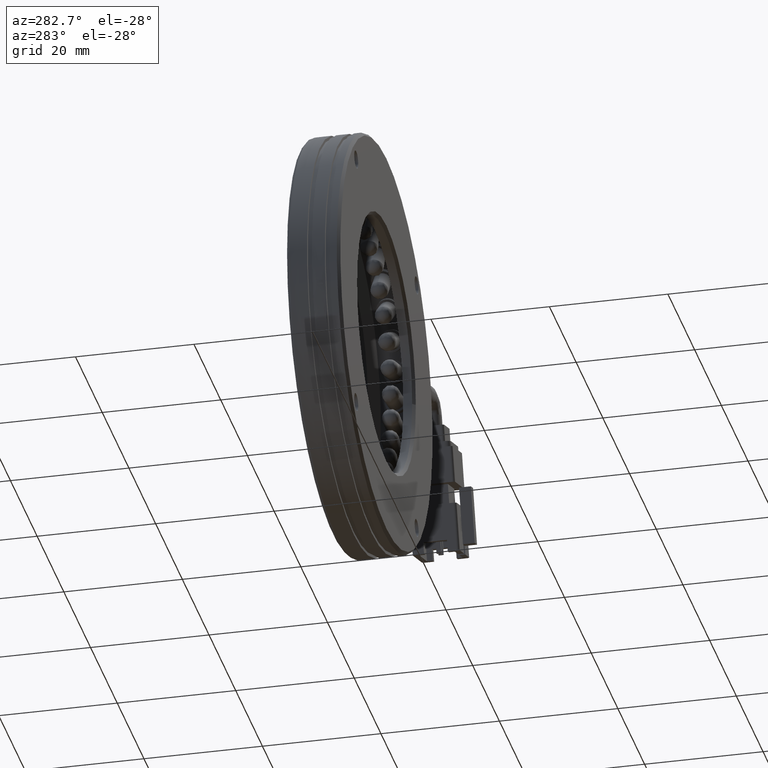
[diagram: clean part render]
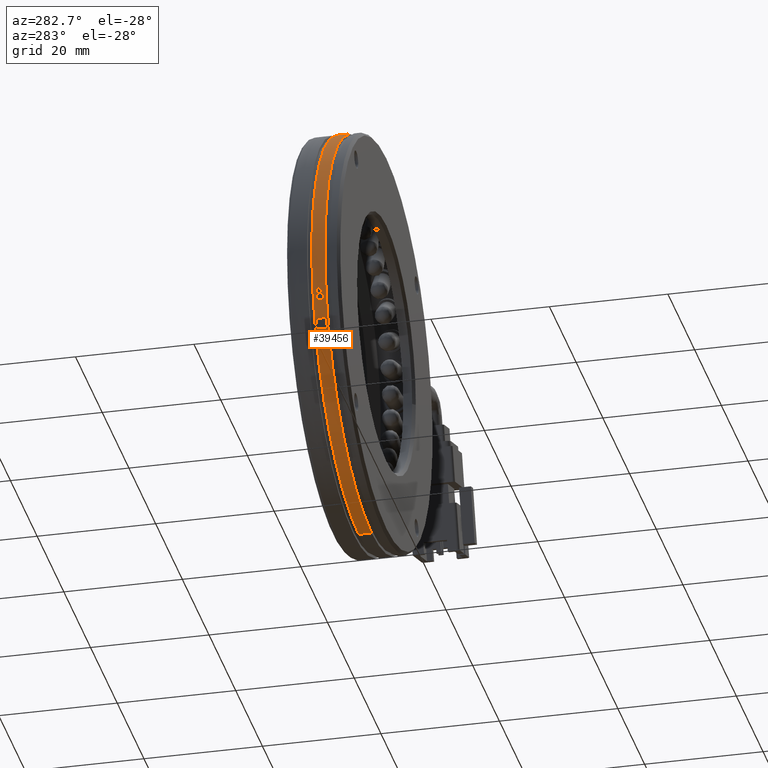
[diagram: same view with one face highlighted and labeled with its STEP entity id]
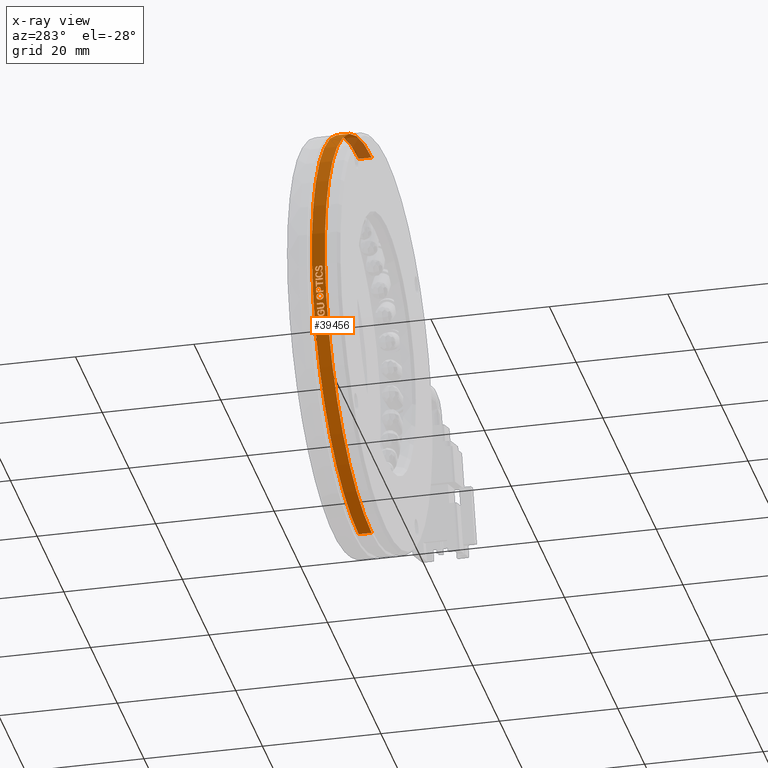
[diagram: x-ray of the same camera — body ghosted, the highlighted face saturated]
A machine part, auxiliary view. The second image highlights one B-rep face of the part: STEP entity #39456.
The next image is the same camera in x-ray: the body ghosted, the highlighted face saturated — about 5% of this face is hidden behind the body in this view.
In plain terms, the highlighted cylindrical surface (partial cylindrical patch) has radius 35 mm, axis along (-0, -1, -0).
Its self-contained STEP definition (entity closure, byte-faithful):
#73 = CARTESIAN_POINT ( 'NONE',  ( -40.53547666222550600, 8.242443319215679400, -3.483992693322067100 ) ) ;
#157 = CARTESIAN_POINT ( 'NONE',  ( -38.64148229074338300, 8.459084325560395400, -11.85204000154898400 ) ) ;
#304 = DIRECTION ( 'NONE',  ( 0.0000000000000000000, -1.000000000000000000, -0.0000000000000000000 ) ) ;
#366 = CARTESIAN_POINT ( 'NONE',  ( -40.29920628825089300, 8.422675619500253700, -5.342081949570753900 ) ) ;
#453 = CARTESIAN_POINT ( 'NONE',  ( -39.95628834277789600, 8.422675619500243000, -7.221028418642943900 ) ) ;
#459 = CARTESIAN_POINT ( 'NONE',  ( -40.56133783458563600, 7.797041341671535600, -3.215118167857672600 ) ) ;
#470 = VERTEX_POINT ( 'NONE', #18406 ) ;
#476 = EDGE_CURVE ( 'NONE', #10409, #35945, #10071, .T. ) ;
#504 = CARTESIAN_POINT ( 'NONE',  ( -39.55218318395322500, 7.736573134054329300, -8.925174409055291100 ) ) ;
#570 = CARTESIAN_POINT ( 'NONE',  ( -39.31469554837986600, 7.389938712935268100, -9.781523189364358800 ) ) ;
#589 = LINE ( 'NONE', #20545, #39957 ) ;
#652 = CARTESIAN_POINT ( 'NONE',  ( -39.79689687238320100, 8.191136736683120000, -7.939624450835792900 ) ) ;
#656 = CARTESIAN_POINT ( 'NONE',  ( -38.86361447577488100, 7.434487917899358100, -11.21574589426866600 ) ) ;
#692 = VERTEX_POINT ( 'NONE', #38119 ) ;
#730 = EDGE_CURVE ( 'NONE', #35945, #5507, #3301, .T. ) ;
#860 = DIRECTION ( 'NONE',  ( 1.493922758805898600E-015, 1.000000000000000000, -5.916712463693376000E-015 ) ) ;
#1065 = CARTESIAN_POINT ( 'NONE',  ( -38.91879959256319700, 8.271977945081571800, -11.05118161482769800 ) ) ;
#1107 = EDGE_CURVE ( 'NONE', #13392, #23356, #589, .T. ) ;
#1163 = EDGE_CURVE ( 'NONE', #10527, #2238, #27072, .T. ) ;
#1197 = CARTESIAN_POINT ( 'NONE',  ( -40.34770708792779500, 8.310776871404204500, -5.018214506731954600 ) ) ;
#1210 = CARTESIAN_POINT ( 'NONE',  ( -40.55049553052099000, 8.379288013979961000, -3.330532701057792100 ) ) ;
#1246 = LINE ( 'NONE', #28783, #25099 ) ;
#1320 = DIRECTION ( 'NONE',  ( -0.0000000000000000000, -1.000000000000000000, -0.0000000000000000000 ) ) ;
#1408 = CARTESIAN_POINT ( 'NONE',  ( -39.02928525543708100, 7.275475782910511700, -10.71354901682399700 ) ) ;
#1444 = EDGE_LOOP ( 'NONE', ( #33549, #36592, #16126, #1475, #12572, #39372, #40021, #35699 ) ) ;
#1448 = CARTESIAN_POINT ( 'NONE',  ( -40.51093759562477500, 7.997929689362726100, -3.721006679087541300 ) ) ;
#1475 = ORIENTED_EDGE ( 'NONE', *, *, #23398, .T. ) ;
#1519 = B_SPLINE_CURVE_WITH_KNOTS ( 'NONE', 3,
 ( #23225, #26402, #10849, #32615, #13970, #35755, #17084, #38851 ),
 .UNSPECIFIED., .F., .F.,
 ( 4, 2, 2, 4 ),
 ( 0.0000000000000000000, 0.0001654224964580908900, 0.0003308449929161817900, 0.0006616899858323659600 ),
 .UNSPECIFIED. ) ;
#1527 = CARTESIAN_POINT ( 'NONE',  ( -40.54775614871339000, 7.540815154383960100, -3.358783389162881300 ) ) ;
#1574 = CARTESIAN_POINT ( 'NONE',  ( -40.38829758862613100, 7.204500430868728600, -4.729970650276749600 ) ) ;
#1606 = CARTESIAN_POINT ( 'NONE',  ( -38.09502467116702500, 8.740899625888616200, -13.27277939368848100 ) ) ;
#1620 = CARTESIAN_POINT ( 'NONE',  ( -40.51378829440806600, 8.438027493296173600, -3.695589123808198400 ) ) ;
#1624 = CARTESIAN_POINT ( 'NONE',  ( -38.82248348599117100, 8.365263761825456600, -11.33674629702095300 ) ) ;
#1669 = LINE ( 'NONE', #39997, #18166 ) ;
#1691 = AXIS2_PLACEMENT_3D ( 'NONE', #2829, #24597, #5933 ) ;
#1712 = CARTESIAN_POINT ( 'NONE',  ( -38.73897972220602500, 7.745321287336094200, -11.57755355022192500 ) ) ;
#1818 = CARTESIAN_POINT ( 'NONE',  ( -38.95554166414014900, 7.200350038104892800, -10.94061511975390600 ) ) ;
#1903 = CARTESIAN_POINT ( 'NONE',  ( -40.52745269589782900, 7.200350038104947900, -3.563101997593711700 ) ) ;
#1912 = EDGE_CURVE ( 'NONE', #34931, #16274, #9187, .T. ) ;
#1937 = ORIENTED_EDGE ( 'NONE', *, *, #34695, .T. ) ;
#1973 = CARTESIAN_POINT ( 'NONE',  ( -5.709292144904565300, 6.760202915404272900, 0.0000000000000000000 ) ) ;
#2053 = CARTESIAN_POINT ( 'NONE',  ( -38.96181454054757200, 7.371642282008244800, -10.92116980101372500 ) ) ;
#2133 = DIRECTION ( 'NONE',  ( 1.754067551975839800E-015, 1.000000000000000000, -6.947021380965523500E-015 ) ) ;
#2165 = CARTESIAN_POINT ( 'NONE',  ( -39.07672688670966500, 7.468257014849023700, -10.56476685740761000 ) ) ;
#2192 = CARTESIAN_POINT ( 'NONE',  ( -40.38554920654129900, 8.251372978122699200, -4.749632317554620000 ) ) ;
#2218 = CARTESIAN_POINT ( 'NONE',  ( -40.52084883555796300, 7.734371977649755300, -3.627458954294418900 ) ) ;
#2238 = VERTEX_POINT ( 'NONE', #5623 ) ;
#2490 = EDGE_CURVE ( 'NONE', #33419, #27143, #11938, .T. ) ;
#2505 = CARTESIAN_POINT ( 'NONE',  ( -40.41747967230236300, 7.357941789606278400, -4.510990520821573900 ) ) ;
#2538 = CARTESIAN_POINT ( 'NONE',  ( -39.00510746707349300, -49.82318178258231000, -10.78835863475163300 ) ) ;
#2557 = CARTESIAN_POINT ( 'NONE',  ( -39.81530310243452700, 7.660729062786580300, -7.860056566970934400 ) ) ;
#2568 = CARTESIAN_POINT ( 'NONE',  ( -5.709292144904565300, 8.422675619500260800, 0.0000000000000000000 ) ) ;
#2600 = VERTEX_POINT ( 'NONE', #26842 ) ;
#2649 = DIRECTION ( 'NONE',  ( -0.0000000000000000000, -1.000000000000000000, -0.0000000000000000000 ) ) ;
#2688 = CARTESIAN_POINT ( 'NONE',  ( -40.54475765538457200, 7.431237524811434600, -3.389763908610748300 ) ) ;
#2720 = CARTESIAN_POINT ( 'NONE',  ( -40.41255655515831800, 8.432226185035306200, -4.548252076466383200 ) ) ;
#2766 = B_SPLINE_CURVE_WITH_KNOTS ( 'NONE', 3,
 ( #24241, #2505, #9290, #31062, #12412, #34205 ),
 .UNSPECIFIED., .F., .F.,
 ( 4, 2, 4 ),
 ( 0.0000000000000000000, 0.0002535272893336179100, 0.0005070545786672358200 ),
 .UNSPECIFIED. ) ;
#2784 = AXIS2_PLACEMENT_3D ( 'NONE', #15032, #36819, #18165 ) ;
#2829 = CARTESIAN_POINT ( 'NONE',  ( -5.709292144904565300, 8.087791898569992800, 0.0000000000000000000 ) ) ;
#2838 = LINE ( 'NONE', #20787, #26701 ) ;
#2908 = CARTESIAN_POINT ( 'NONE',  ( -38.03202334669729400, 7.001512059884381000, -13.42542577771813200 ) ) ;
#2918 = CARTESIAN_POINT ( 'NONE',  ( -40.03813142602208300, 7.977316565985819200, -6.821348518083851800 ) ) ;
#2938 = EDGE_CURVE ( 'NONE', #36874, #9990, #31979, .T. ) ;
#2966 = CARTESIAN_POINT ( 'NONE',  ( -40.56877179554821600, 8.065466317174681900, -3.133157909579497700 ) ) ;
#3043 = ORIENTED_EDGE ( 'NONE', *, *, #26605, .T. ) ;
#3129 = CARTESIAN_POINT ( 'NONE',  ( -39.19875312196083400, 7.669187247407189800, -10.17133243317831800 ) ) ;
#3194 = CARTESIAN_POINT ( 'NONE',  ( -40.52476537185084700, 8.266396549732800000, -3.589265103581328600 ) ) ;
#3301 = B_SPLINE_CURVE_WITH_KNOTS ( 'NONE', 3,
 ( #5939, #7421, #4041, #36625, #34635, #39090, #7647, #5803 ),
 .UNSPECIFIED., .F., .F.,
 ( 4, 2, 2, 4 ),
 ( 0.0000000000000000000, 7.768946172602923100E-005, 0.0001553789234520584600, 0.0003107578469041152400 ),
 .UNSPECIFIED. ) ;
#3488 = VERTEX_POINT ( 'NONE', #39619 ) ;
#3504 = CARTESIAN_POINT ( 'NONE',  ( -39.68912917594610000, 7.200350038104912400, -8.388723105685269100 ) ) ;
#3507 = CARTESIAN_POINT ( 'NONE',  ( -39.72578698116698300, 8.420034948256935400, -8.239131724998019400 ) ) ;
#3514 = VERTEX_POINT ( 'NONE', #28610 ) ;
#3527 = EDGE_CURVE ( 'NONE', #692, #39454, #38435, .T. ) ;
#3534 = B_SPLINE_CURVE_WITH_KNOTS ( 'NONE', 3,
 ( #20839, #36359, #30230, #11589, #33379, #14719, #36483, #17822 ),
 .UNSPECIFIED., .F., .F.,
 ( 4, 2, 2, 4 ),
 ( 0.0000000000000000000, 0.0001754701520296395500, 0.0002632052280444594300, 0.0003509403040592792700 ),
 .UNSPECIFIED. ) ;
#3549 = EDGE_CURVE ( 'NONE', #16097, #37463, #5348, .T. ) ;
#3583 = CARTESIAN_POINT ( 'NONE',  ( -40.51794274114319400, 7.195225774058302500, -3.656032015230994400 ) ) ;
#3598 = CARTESIAN_POINT ( 'NONE',  ( -40.35859765001420400, 7.755539012862845600, -4.942229227585373900 ) ) ;
#3659 = EDGE_CURVE ( 'NONE', #25961, #36083, #6673, .T. ) ;
#3701 = CARTESIAN_POINT ( 'NONE',  ( -39.33623799906057200, 7.477897251754965800, -9.707163120419680900 ) ) ;
#3727 = CARTESIAN_POINT ( 'NONE',  ( -40.37920079895310700, 7.424216999721125800, -4.795800411846191700 ) ) ;
#3733 = EDGE_CURVE ( 'NONE', #10079, #22161, #31112, .T. ) ;
#3755 = EDGE_CURVE ( 'NONE', #17462, #470, #32492, .T. ) ;
#3760 = DIRECTION ( 'NONE',  ( -3.470918447232477800E-015, -1.000000000000000000, 1.374664541131868600E-014 ) ) ;
#3766 = CARTESIAN_POINT ( 'NONE',  ( -39.81471281410183800, 7.970489118088113200, -7.862619172650771500 ) ) ;
#3769 = CARTESIAN_POINT ( 'NONE',  ( -38.90883928611893300, 7.366881929807158600, -11.08119248646681900 ) ) ;
#3780 = CARTESIAN_POINT ( 'NONE',  ( -40.51514803059363600, 8.259676748573346200, -3.681524417298796000 ) ) ;
#3846 = VERTEX_POINT ( 'NONE', #31989 ) ;
#3887 = ORIENTED_EDGE ( 'NONE', *, *, #17932, .T. ) ;
#4033 = EDGE_CURVE ( 'NONE', #33059, #32058, #33050, .T. ) ;
#4041 = CARTESIAN_POINT ( 'NONE',  ( -40.54721289358637600, 7.593158427939165700, -3.364436159476679800 ) ) ;
#4047 = EDGE_CURVE ( 'NONE', #4275, #36874, #26568, .T. ) ;
#4052 = CARTESIAN_POINT ( 'NONE',  ( -39.55465258360452200, 7.969963101081008400, -8.915829229625401800 ) ) ;
#4059 = EDGE_CURVE ( 'NONE', #470, #14309, #2838, .T. ) ;
#4121 = CARTESIAN_POINT ( 'NONE',  ( -40.56685186871252600, 7.343572252354553200, -3.154530986789975300 ) ) ;
#4275 = VERTEX_POINT ( 'NONE', #9633 ) ;
#4277 = FACE_BOUND ( 'NONE', #31274, .T. ) ;
#4312 = CARTESIAN_POINT ( 'NONE',  ( -40.37654649462209700, 8.419737279391098300, -4.815234610611336800 ) ) ;
#4326 = CARTESIAN_POINT ( 'NONE',  ( -40.56190549431917700, 8.269175613935082900, -3.208735270689643900 ) ) ;
#4496 = ORIENTED_EDGE ( 'NONE', *, *, #26000, .T. ) ;
#4590 = CARTESIAN_POINT ( 'NONE',  ( -38.73897997783097200, 7.903406844032245400, -11.57755282113232900 ) ) ;
#4620 = VERTEX_POINT ( 'NONE', #33566 ) ;
#4631 = B_SPLINE_CURVE_WITH_KNOTS ( 'NONE', 3,
 ( #10290, #28941, #16521, #38314, #19655, #1065 ),
 .UNSPECIFIED., .F., .F.,
 ( 4, 2, 4 ),
 ( 0.0000000000000000000, 0.0001649458155764962300, 0.0003298916311529924600 ),
 .UNSPECIFIED. ) ;
#4636 = EDGE_CURVE ( 'NONE', #37463, #26574, #5630, .T. ) ;
#4654 = EDGE_CURVE ( 'NONE', #30132, #6888, #13895, .T. ) ;
#4731 = CARTESIAN_POINT ( 'NONE',  ( -38.89403620348128500, 8.435338422186063700, -11.12559718257487900 ) ) ;
#4793 = CARTESIAN_POINT ( 'NONE',  ( -40.45697096470811300, 7.401280270663060700, -4.195094353620150200 ) ) ;
#4822 = CARTESIAN_POINT ( 'NONE',  ( -40.45059680485722700, 7.331127349915618700, -4.247891082507437400 ) ) ;
#4944 = EDGE_CURVE ( 'NONE', #12218, #37077, #29627, .T. ) ;
#5063 = CARTESIAN_POINT ( 'NONE',  ( -39.19956218354241900, 7.593185600686521000, -10.16867133117875400 ) ) ;
#5092 = DIRECTION ( 'NONE',  ( 0.0000000000000000000, 0.0000000000000000000, -1.000000000000000000 ) ) ;
#5116 = CARTESIAN_POINT ( 'NONE',  ( -40.52250237802779500, 7.944830209371730200, -3.611475847821242500 ) ) ;
#5137 = CARTESIAN_POINT ( 'NONE',  ( -39.40376367187176500, 7.453320110577359400, -9.470101608405192600 ) ) ;
#5226 = FACE_BOUND ( 'NONE', #21199, .T. ) ;
#5300 = CARTESIAN_POINT ( 'NONE',  ( -40.36928885171335000, 8.153539806427026800, -4.866735766951553200 ) ) ;
#5348 = LINE ( 'NONE', #29162, #20908 ) ;
#5368 = VECTOR ( 'NONE', #7444, 1000.000000000000000 ) ;
#5472 = LINE ( 'NONE', #29111, #13717 ) ;
#5507 = VERTEX_POINT ( 'NONE', #21239 ) ;
#5557 = CARTESIAN_POINT ( 'NONE',  ( -40.03705161495266700, 8.140099605349982800, -6.826798934873116000 ) ) ;
#5623 = CARTESIAN_POINT ( 'NONE',  ( -38.92374827998977300, 7.200350038104891900, -11.03629936393990000 ) ) ;
#5630 = CIRCLE ( 'NONE', #38976, 34.99999999999999300 ) ;
#5653 = CARTESIAN_POINT ( 'NONE',  ( -38.86006584279557800, 8.197629872400705500, -11.22621805095343500 ) ) ;
#5670 = CARTESIAN_POINT ( 'NONE',  ( -39.79773789773552300, 7.441742396686799500, -7.936019734895056700 ) ) ;
#5681 = DIRECTION ( 'NONE',  ( 0.0000000000000000000, 0.0000000000000000000, -1.000000000000000000 ) ) ;
#5772 = ORIENTED_EDGE ( 'NONE', *, *, #30649, .T. ) ;
#5803 = CARTESIAN_POINT ( 'NONE',  ( -40.52638276884088200, 7.725001200895628800, -3.573541728398598000 ) ) ;
#5823 = CARTESIAN_POINT ( 'NONE',  ( -40.43371579231780500, 8.376161693293269600, -4.383668734466495700 ) ) ;
#5866 = EDGE_LOOP ( 'NONE', ( #29716, #24543, #12708, #9671, #14039, #29892, #18057, #34245, #9169, #35156, #19631, #17599, #12170, #32187 ) ) ;
#5933 = DIRECTION ( 'NONE',  ( 0.0000000000000000000, 0.0000000000000000000, 1.000000000000000000 ) ) ;
#5939 = CARTESIAN_POINT ( 'NONE',  ( -40.54775614871339000, 7.540815154383960100, -3.358783389162881300 ) ) ;
#5973 = AXIS2_PLACEMENT_3D ( 'NONE', #13459, #35264, #16589 ) ;
#6005 = CARTESIAN_POINT ( 'NONE',  ( -37.99907053573987500, 7.103584130538312300, -13.50445773701650700 ) ) ;
#6032 = ORIENTED_EDGE ( 'NONE', *, *, #19426, .T. ) ;
#6086 = LINE ( 'NONE', #29408, #38211 ) ;
#6158 = LINE ( 'NONE', #2538, #22689 ) ;
#6408 = EDGE_CURVE ( 'NONE', #14309, #10409, #36701, .T. ) ;
#6424 = CARTESIAN_POINT ( 'NONE',  ( -40.39923010655290600, 7.365698733646627100, -4.648769777147856900 ) ) ;
#6441 = B_SPLINE_CURVE_WITH_KNOTS ( 'NONE', 3,
 ( #6982, #12932, #25769, #7117, #28875, #10229, #32009, #13334, #35133, #16460 ),
 .UNSPECIFIED., .F., .F.,
 ( 4, 2, 2, 2, 4 ),
 ( 0.0000000000000000000, 0.0002096298023309850400, 0.0004192596046619700800, 0.0006288894069929550600, 0.0008385192093239401500 ),
 .UNSPECIFIED. ) ;
#6485 = CARTESIAN_POINT ( 'NONE',  ( -37.98725723676815800, 7.277541098519406200, -13.53266306121728500 ) ) ;
#6491 = AXIS2_PLACEMENT_3D ( 'NONE', #19428, #860, #22585 ) ;
#6494 = LINE ( 'NONE', #35507, #23046 ) ;
#6518 = AXIS2_PLACEMENT_3D ( 'NONE', #15258, #37033, #18372 ) ;
#6547 = CARTESIAN_POINT ( 'NONE',  ( -5.709292144904565300, 8.043140735779310500, 0.0000000000000000000 ) ) ;
#6560 = EDGE_CURVE ( 'NONE', #12778, #10484, #22406, .T. ) ;
#6603 = CARTESIAN_POINT ( 'NONE',  ( -39.67052613917385900, 7.205244149363530900, -8.464077620292503200 ) ) ;
#6673 = B_SPLINE_CURVE_WITH_KNOTS ( 'NONE', 3,
 ( #453, #21457, #22744, #17885, #39673, #33442, #11658, #5557, #21034, #11084 ),
 .UNSPECIFIED., .F., .F.,
 ( 4, 2, 2, 2, 4 ),
 ( 0.0000000000000000000, 0.0001612189044589055000, 0.0003224378089178110100, 0.0004836567133767164800, 0.0006448756178356220100 ),
 .UNSPECIFIED. ) ;
#6799 = CARTESIAN_POINT ( 'NONE',  ( -39.34351962650100600, 7.591435000567733100, -9.681879432709633800 ) ) ;
#6887 = CARTESIAN_POINT ( 'NONE',  ( -39.81836345621975700, 7.814303526476971100, -7.846735262490696500 ) ) ;
#6888 = VERTEX_POINT ( 'NONE', #14942 ) ;
#6893 = CARTESIAN_POINT ( 'NONE',  ( -39.55129533759086500, 7.814303526476964000, -8.928539628976865900 ) ) ;
#6898 = CARTESIAN_POINT ( 'NONE',  ( -40.50818900838824300, 8.198170257738963700, -3.746575503391677700 ) ) ;
#6946 = B_SPLINE_CURVE_WITH_KNOTS ( 'NONE', 3,
 ( #29458, #7698, #35742, #17071, #38835, #20208, #1620, #23352 ),
 .UNSPECIFIED., .F., .F.,
 ( 4, 2, 2, 4 ),
 ( 0.0000000000000000000, 0.0001499525500138700000, 0.0002999051000277399900, 0.0005998102000554818300 ),
 .UNSPECIFIED. ) ;
#6982 = CARTESIAN_POINT ( 'NONE',  ( -39.27059936408246400, 7.200350038104902600, -9.931699640039335400 ) ) ;
#7096 = CARTESIAN_POINT ( 'NONE',  ( -40.52745269589782900, 7.937094224151449500, -3.563101997593718400 ) ) ;
#7098 = AXIS2_PLACEMENT_3D ( 'NONE', #7923, #29661, #23574 ) ;
#7117 = CARTESIAN_POINT ( 'NONE',  ( -39.19116559749935600, 7.241640923057700800, -10.19650719777151300 ) ) ;
#7156 = CARTESIAN_POINT ( 'NONE',  ( -39.57368600056371800, 8.193242521652154100, -8.843374889167666500 ) ) ;
#7176 = CARTESIAN_POINT ( 'NONE',  ( -40.26084559011923100, 7.222675619500254400, -5.584814636357588600 ) ) ;
#7216 = CARTESIAN_POINT ( 'NONE',  ( -40.55444964358935100, 7.241605815432302900, -3.288966588245640500 ) ) ;
#7247 = DIRECTION ( 'NONE',  ( -0.0000000000000000000, -1.000000000000000000, -0.0000000000000000000 ) ) ;
#7421 = CARTESIAN_POINT ( 'NONE',  ( -40.54775614871338300, 7.567005895077189200, -3.358783389162880000 ) ) ;
#7435 = CARTESIAN_POINT ( 'NONE',  ( -40.39723486211963200, 8.439419805546799900, -4.663328215685306900 ) ) ;
#7444 = DIRECTION ( 'NONE',  ( -0.0000000000000000000, -1.000000000000000000, -0.0000000000000000000 ) ) ;
#7453 = CARTESIAN_POINT ( 'NONE',  ( -40.56792547127482600, 8.119658643845564700, -3.142574103923013500 ) ) ;
#7475 = CARTESIAN_POINT ( 'NONE',  ( -40.48101679372501800, 7.561069157719599900, -3.991237260824512100 ) ) ;
#7480 = CARTESIAN_POINT ( 'NONE',  ( -40.47489217857850000, 7.635698875314251800, -4.043890985005838900 ) ) ;
#7647 = CARTESIAN_POINT ( 'NONE',  ( -40.53160634239914400, 7.715725028124659900, -3.522648343689113400 ) ) ;
#7698 = CARTESIAN_POINT ( 'NONE',  ( -40.47820313024874400, 8.160864566583649400, -4.015325018201898500 ) ) ;
#7736 = EDGE_CURVE ( 'NONE', #2600, #20907, #37843, .T. ) ;
#7810 = CARTESIAN_POINT ( 'NONE',  ( -38.92374827998977300, 7.200350038104891900, -11.03629936393990000 ) ) ;
#7833 = DIRECTION ( 'NONE',  ( -2.297594453175613100E-015, -1.000000000000000000, 9.099671089074809300E-015 ) ) ;
#7868 = CARTESIAN_POINT ( 'NONE',  ( -39.41190144243923800, 7.741745386942083600, -9.441087148084673000 ) ) ;
#7923 = CARTESIAN_POINT ( 'NONE',  ( -5.709292144904565300, -49.82318178258231000, 0.0000000000000000000 ) ) ;
#7957 = CARTESIAN_POINT ( 'NONE',  ( -40.42150679548596100, 7.212168896957985400, -4.479812809557270900 ) ) ;
#7986 = EDGE_CURVE ( 'NONE', #39454, #29812, #33782, .T. ) ;
#8086 = CARTESIAN_POINT ( 'NONE',  ( -40.29920628825089300, -49.82318178258228900, -5.342081949570753900 ) ) ;
#8095 = CARTESIAN_POINT ( 'NONE',  ( -38.64148229074350400, 8.414617254833320500, -11.85204000154861200 ) ) ;
#8138 = CARTESIAN_POINT ( 'NONE',  ( -38.63145249990672900, 7.105419689710889700, -11.87987861108269300 ) ) ;
#8158 = FACE_BOUND ( 'NONE', #1444, .T. ) ;
#8181 = CARTESIAN_POINT ( 'NONE',  ( -39.20813479704043700, 7.482108126761699100, -10.14041591830368600 ) ) ;
#8255 = CARTESIAN_POINT ( 'NONE',  ( -39.36957160098684500, 7.275160774851551400, -9.591031925942360200 ) ) ;
#8288 = CARTESIAN_POINT ( 'NONE',  ( -38.92538948739746000, 7.362210503221152900, -11.03135881630345900 ) ) ;
#8422 = CARTESIAN_POINT ( 'NONE',  ( -40.36127688002331800, 8.011527160321612900, -4.923415586954157600 ) ) ;
#8538 = B_SPLINE_CURVE_WITH_KNOTS ( 'NONE', 3,
 ( #32190, #13519, #16648, #38431, #19776, #1197, #22919, #4312, #26099, #7435 ),
 .UNSPECIFIED., .F., .F.,
 ( 4, 2, 2, 2, 4 ),
 ( 0.0000000000000000000, 0.0002269707158079891900, 0.0004539414316159783900, 0.0006809121474239675500, 0.0009078828632319567700 ),
 .UNSPECIFIED. ) ;
#8550 = DIRECTION ( 'NONE',  ( -2.548855391038940300E-015, -1.000000000000000000, 1.009479531081403400E-014 ) ) ;
#8565 = CARTESIAN_POINT ( 'NONE',  ( -40.17456373751140600, 7.222675619500247300, -6.094674236400825500 ) ) ;
#8574 = CARTESIAN_POINT ( 'NONE',  ( -40.50415660005546700, 7.779498754954890800, -3.784193629749848400 ) ) ;
#8583 = CARTESIAN_POINT ( 'NONE',  ( -40.06103514893978700, 8.255233759035112600, -6.705054256657208000 ) ) ;
#8612 = CYLINDRICAL_SURFACE ( 'NONE', #7098, 34.99999999999999300 ) ;
#8622 = DIRECTION ( 'NONE',  ( 0.0000000000000000000, 1.000000000000000000, 0.0000000000000000000 ) ) ;
#8740 = VERTEX_POINT ( 'NONE', #28784 ) ;
#8766 = CARTESIAN_POINT ( 'NONE',  ( -38.82586513494869300, 8.023305410775336100, -11.32673464351591800 ) ) ;
#8782 = CARTESIAN_POINT ( 'NONE',  ( -39.75958430194381800, 7.277443506221590800, -8.098318947807188200 ) ) ;
#8884 = ORIENTED_EDGE ( 'NONE', *, *, #28873, .T. ) ;
#8951 = CARTESIAN_POINT ( 'NONE',  ( -40.44973167136441800, 8.258070460879219300, -4.254718912902770700 ) ) ;
#8971 = CIRCLE ( 'NONE', #37268, 34.99999999999999300 ) ;
#8978 = CARTESIAN_POINT ( 'NONE',  ( -39.27207348800719400, 7.362210503221170700, -9.926716905154590300 ) ) ;
#8979 = CARTESIAN_POINT ( 'NONE',  ( -40.56513329941063300, 7.760054152277430000, -3.173513029057545500 ) ) ;
#9028 = EDGE_CURVE ( 'NONE', #30320, #25961, #25210, .T. ) ;
#9035 = ORIENTED_EDGE ( 'NONE', *, *, #34539, .T. ) ;
#9099 = AXIS2_PLACEMENT_3D ( 'NONE', #20729, #2133, #23875 ) ;
#9119 = CARTESIAN_POINT ( 'NONE',  ( -39.85305510295734900, 7.222675619500240200, -7.694377886762671500 ) ) ;
#9136 = CARTESIAN_POINT ( 'NONE',  ( -37.98725723676798800, 7.232952337373855100, -13.53266306121765800 ) ) ;
#9165 = ORIENTED_EDGE ( 'NONE', *, *, #23213, .T. ) ;
#9169 = ORIENTED_EDGE ( 'NONE', *, *, #30181, .T. ) ;
#9187 = CIRCLE ( 'NONE', #33896, 34.99999999999999300 ) ;
#9206 = AXIS2_PLACEMENT_3D ( 'NONE', #6547, #28309, #9680 ) ;
#9273 = CARTESIAN_POINT ( 'NONE',  ( -40.03162370690012000, 7.818736150746274500, -6.854033237154530900 ) ) ;
#9290 = CARTESIAN_POINT ( 'NONE',  ( -40.42816074560423100, 7.389028225742777100, -4.427721815550484900 ) ) ;
#9458 = CARTESIAN_POINT ( 'NONE',  ( -39.12517057512438600, 7.730582596244414800, -10.41052682320971100 ) ) ;
#9525 = EDGE_CURVE ( 'NONE', #8740, #14310, #4631, .T. ) ;
#9633 = CARTESIAN_POINT ( 'NONE',  ( -40.39932456966155200, 8.266396549732789400, -4.647757563525561700 ) ) ;
#9671 = ORIENTED_EDGE ( 'NONE', *, *, #11297, .T. ) ;
#9680 = DIRECTION ( 'NONE',  ( 0.0000000000000000000, 0.0000000000000000000, 1.000000000000000000 ) ) ;
#9799 = CARTESIAN_POINT ( 'NONE',  ( -39.28312182066953500, 7.360562549649730000, -9.889361878624193000 ) ) ;
#9833 = ORIENTED_EDGE ( 'NONE', *, *, #3755, .T. ) ;
#9844 = VERTEX_POINT ( 'NONE', #3129 ) ;
#9849 = CARTESIAN_POINT ( 'NONE',  ( -40.42986843329651900, 8.043140735779310500, -4.413794535538989400 ) ) ;
#9882 = CARTESIAN_POINT ( 'NONE',  ( -38.82021610022735600, 7.819884921825778400, -11.34313514090487000 ) ) ;
#9932 = EDGE_CURVE ( 'NONE', #15194, #32682, #10873, .T. ) ;
#9936 = DIRECTION ( 'NONE',  ( -0.0000000000000000000, -1.000000000000000000, -0.0000000000000000000 ) ) ;
#9938 = CARTESIAN_POINT ( 'NONE',  ( -39.34359537937439200, 7.669187247407199600, -9.681613808231128700 ) ) ;
#9990 = VERTEX_POINT ( 'NONE', #38715 ) ;
#10022 = CARTESIAN_POINT ( 'NONE',  ( -40.50645486383901800, 8.132707291789376600, -3.762641000869432000 ) ) ;
#10042 = EDGE_CURVE ( 'NONE', #38629, #36228, #17892, .T. ) ;
#10071 = B_SPLINE_CURVE_WITH_KNOTS ( 'NONE', 3,
 ( #27302, #28210, #11908, #29865, #2688, #31949, #32606, #31080 ),
 .UNSPECIFIED., .F., .F.,
 ( 4, 2, 2, 4 ),
 ( 0.0000000000000000000, 0.0001717628989189252200, 0.0002576443483783890300, 0.0003435257978378528700 ),
 .UNSPECIFIED. ) ;
#10079 = VERTEX_POINT ( 'NONE', #36008 ) ;
#10094 = CARTESIAN_POINT ( 'NONE',  ( -40.57036441822205600, 7.666607211403667000, -3.115523629871976000 ) ) ;
#10139 = ORIENTED_EDGE ( 'NONE', *, *, #33015, .T. ) ;
#10192 = CARTESIAN_POINT ( 'NONE',  ( -40.54623750038824400, 8.065466317174685400, -3.374498229225254300 ) ) ;
#10200 = AXIS2_PLACEMENT_3D ( 'NONE', #22353, #3760, #25543 ) ;
#10206 = DIRECTION ( 'NONE',  ( 0.0000000000000000000, 1.000000000000000000, 0.0000000000000000000 ) ) ;
#10229 = CARTESIAN_POINT ( 'NONE',  ( -39.14431553867947100, 7.383153390592332800, -10.34898258146121100 ) ) ;
#10275 = CARTESIAN_POINT ( 'NONE',  ( -39.61509251605758700, 8.363603585705695000, -8.683434711592136400 ) ) ;
#10290 = CARTESIAN_POINT ( 'NONE',  ( -38.99545062048834200, 8.087791898569996400, -10.81811693125576600 ) ) ;
#10342 = CARTESIAN_POINT ( 'NONE',  ( -40.53868788079728300, 7.203952927624682100, -3.451987048637009000 ) ) ;
#10409 = VERTEX_POINT ( 'NONE', #26455 ) ;
#10416 = CARTESIAN_POINT ( 'NONE',  ( -39.34359537937431400, 8.422675619500225300, -9.681613808231441400 ) ) ;
#10484 = VERTEX_POINT ( 'NONE', #29651 ) ;
#10527 = VERTEX_POINT ( 'NONE', #20671 ) ;
#10559 = CARTESIAN_POINT ( 'NONE',  ( -40.50467462264423800, 7.389678675521260200, -3.779833531160769100 ) ) ;
#10647 = VERTEX_POINT ( 'NONE', #8978 ) ;
#10849 = CARTESIAN_POINT ( 'NONE',  ( -38.95364630601825000, 8.434214380726640300, -10.94604072498605500 ) ) ;
#10873 = B_SPLINE_CURVE_WITH_KNOTS ( 'NONE', 3,
 ( #16665, #35334, #13530, #19790, #1210, #22939, #4326, #26118, #7453, #29212 ),
 .UNSPECIFIED., .F., .F.,
 ( 4, 2, 2, 2, 4 ),
 ( 0.0000000000000000000, 0.0001633882542697545700, 0.0003267765085395091400, 0.0004901647628092637400, 0.0006535530170790182900 ),
 .UNSPECIFIED. ) ;
#10906 = AXIS2_PLACEMENT_3D ( 'NONE', #32991, #14328, #36114 ) ;
#10936 = CARTESIAN_POINT ( 'NONE',  ( -39.81836345621975700, 7.814303526476971100, -7.846735262490696500 ) ) ;
#11011 = EDGE_CURVE ( 'NONE', #36228, #20714, #1519, .T. ) ;
#11045 = CIRCLE ( 'NONE', #37361, 34.99999999999999300 ) ;
#11048 = CARTESIAN_POINT ( 'NONE',  ( -40.35779602570709600, 7.277215972932811600, -4.948374904593429800 ) ) ;
#11084 = CARTESIAN_POINT ( 'NONE',  ( -40.03785616239567000, 8.031977945081628400, -6.822733506228666500 ) ) ;
#11088 = AXIS2_PLACEMENT_3D ( 'NONE', #27207, #8550, #30330 ) ;
#11117 = EDGE_CURVE ( 'NONE', #3514, #34194, #16306, .T. ) ;
#11203 = LINE ( 'NONE', #29159, #27775 ) ;
#11241 = ORIENTED_EDGE ( 'NONE', *, *, #19285, .T. ) ;
#11254 = CARTESIAN_POINT ( 'NONE',  ( -38.60268047168327900, 7.002479478845539300, -11.95934721568090500 ) ) ;
#11297 = EDGE_CURVE ( 'NONE', #20714, #8740, #26833, .T. ) ;
#11299 = CARTESIAN_POINT ( 'NONE',  ( -39.22995528470848100, 7.395820149749652300, -10.06808778096503000 ) ) ;
#11324 = ORIENTED_EDGE ( 'NONE', *, *, #3659, .T. ) ;
#11377 = CARTESIAN_POINT ( 'NONE',  ( -39.31197047903702900, 7.200174899128376700, -9.791065868198012700 ) ) ;
#11399 = B_SPLINE_CURVE_WITH_KNOTS ( 'NONE', 3,
 ( #6893, #22638, #4052, #25809, #7156, #28922, #10275, #32048, #13380, #35179 ),
 .UNSPECIFIED., .F., .F.,
 ( 4, 2, 2, 2, 4 ),
 ( 0.0000000000000000000, 0.0002323634499704908200, 0.0004647268999409816500, 0.0006970903499114724500, 0.0009294537998819633000 ),
 .UNSPECIFIED. ) ;
#11410 = CARTESIAN_POINT ( 'NONE',  ( -38.99996171924271900, 7.491255161809070800, -10.80423981513031300 ) ) ;
#11473 = VECTOR ( 'NONE', #37716, 1000.000000000000000 ) ;
#11535 = CARTESIAN_POINT ( 'NONE',  ( -40.35849619406285200, 7.859911026569127700, -4.942940330780881000 ) ) ;
#11537 = DIRECTION ( 'NONE',  ( -0.0000000000000000000, 1.000000000000000000, -0.0000000000000000000 ) ) ;
#11589 = CARTESIAN_POINT ( 'NONE',  ( -40.41765857223754200, 8.222574024657772500, -4.508847656390382300 ) ) ;
#11625 = CARTESIAN_POINT ( 'NONE',  ( -38.91879959256319700, 8.271977945081571800, -11.05118161482769800 ) ) ;
#11658 = CARTESIAN_POINT ( 'NONE',  ( -40.03082101776604400, 8.244443024441340000, -6.858054371321194300 ) ) ;
#11700 = CARTESIAN_POINT ( 'NONE',  ( -40.48829545299331300, 7.860048198561824700, -3.927220194551606100 ) ) ;
#11717 = VERTEX_POINT ( 'NONE', #31055 ) ;
#11770 = CARTESIAN_POINT ( 'NONE',  ( -5.709292144904560800, 8.960202915404266800, 34.99999999999999300 ) ) ;
#11898 = ORIENTED_EDGE ( 'NONE', *, *, #39292, .T. ) ;
#11902 = CARTESIAN_POINT ( 'NONE',  ( -38.82021610022735600, 7.819884921825778400, -11.34313514090487000 ) ) ;
#11908 = CARTESIAN_POINT ( 'NONE',  ( -40.53555386408865500, 7.363135000463677700, -3.483378137786610200 ) ) ;
#11913 = CARTESIAN_POINT ( 'NONE',  ( -39.70780803117899200, 7.205264095783381800, -8.313061476526289800 ) ) ;
#11938 = B_SPLINE_CURVE_WITH_KNOTS ( 'NONE', 3,
 ( #37709, #14540, #37972, #459, #8979, #10094, #30738, #37315 ),
 .UNSPECIFIED., .F., .F.,
 ( 4, 2, 2, 4 ),
 ( 0.0000000000000000000, 0.0003257335998712273200, 0.0004886003998068406900, 0.0006514671997424541100 ),
 .UNSPECIFIED. ) ;
#11944 = CARTESIAN_POINT ( 'NONE',  ( -38.91879959256319700, 8.439419805546750200, -11.05118161482769800 ) ) ;
#12059 = CARTESIAN_POINT ( 'NONE',  ( -40.45864239882633500, 8.100388977702882800, -4.181244878212548400 ) ) ;
#12170 = ORIENTED_EDGE ( 'NONE', *, *, #34669, .T. ) ;
#12218 = VERTEX_POINT ( 'NONE', #39577 ) ;
#12262 = CARTESIAN_POINT ( 'NONE',  ( -40.54623750038824400, 8.065466317174685400, -3.374498229225254300 ) ) ;
#12398 = CARTESIAN_POINT ( 'NONE',  ( -40.01051295886607300, 7.693562942142804700, -6.959011376627986000 ) ) ;
#12399 = CARTESIAN_POINT ( 'NONE',  ( -40.57159029504670400, 7.557559340430498400, -3.101639516545390500 ) ) ;
#12412 = CARTESIAN_POINT ( 'NONE',  ( -40.45147712074328400, 7.558445091305022100, -4.240599486397779400 ) ) ;
#12475 = CARTESIAN_POINT ( 'NONE',  ( -38.58840364347606300, 8.711829927737833000, -11.99857520911555600 ) ) ;
#12506 = FACE_BOUND ( 'NONE', #21289, .T. ) ;
#12572 = ORIENTED_EDGE ( 'NONE', *, *, #15516, .T. ) ;
#12667 = ORIENTED_EDGE ( 'NONE', *, *, #27112, .T. ) ;
#12682 = B_SPLINE_CURVE_WITH_KNOTS ( 'NONE', 3,
 ( #12262, #34189, #18638, #73, #21781, #3194 ),
 .UNSPECIFIED., .F., .F.,
 ( 4, 2, 4 ),
 ( 0.0000000000000000000, 0.0001571084569922647400, 0.0003142169139845294700 ),
 .UNSPECIFIED. ) ;
#12708 = ORIENTED_EDGE ( 'NONE', *, *, #11011, .T. ) ;
#12778 = VERTEX_POINT ( 'NONE', #16937 ) ;
#12797 = ORIENTED_EDGE ( 'NONE', *, *, #9932, .T. ) ;
#12837 = CARTESIAN_POINT ( 'NONE',  ( -39.61647766607584500, 7.277036472020415500, -8.678019288324964700 ) ) ;
#12910 = CARTESIAN_POINT ( 'NONE',  ( -40.48955802644697900, 7.285328544696468200, -3.916646433782335000 ) ) ;
#12932 = CARTESIAN_POINT ( 'NONE',  ( -39.25050040812970300, 7.198051106499040200, -9.999618250142644300 ) ) ;
#13018 = CARTESIAN_POINT ( 'NONE',  ( -38.64148229074336900, 7.277541098519413300, -11.85204000154898000 ) ) ;
#13048 = VERTEX_POINT ( 'NONE', #24452 ) ;
#13162 = B_SPLINE_CURVE_WITH_KNOTS ( 'NONE', 3,
 ( #9882, #28514, #34776, #16098, #37880, #19223, #656, #22362, #3769, #25554 ),
 .UNSPECIFIED., .F., .F.,
 ( 4, 2, 2, 2, 4 ),
 ( 0.0000000000000000000, 0.0001556736026901478400, 0.0003113472053802956800, 0.0004670208080704435200, 0.0006226944107605913600 ),
 .UNSPECIFIED. ) ;
#13229 = VERTEX_POINT ( 'NONE', #37737 ) ;
#13334 = CARTESIAN_POINT ( 'NONE',  ( -39.12577076006170500, 7.588645659310243400, -10.40861299272880400 ) ) ;
#13380 = CARTESIAN_POINT ( 'NONE',  ( -39.67014270638468100, 8.436083765246879200, -8.465630774869783400 ) ) ;
#13392 = VERTEX_POINT ( 'NONE', #35422 ) ;
#13448 = CARTESIAN_POINT ( 'NONE',  ( -40.52745269589782900, 7.200350038104947900, -3.563101997593711700 ) ) ;
#13450 = VERTEX_POINT ( 'NONE', #26350 ) ;
#13459 = CARTESIAN_POINT ( 'NONE',  ( -5.709292144904565300, 8.422675619500234100, 0.0000000000000000000 ) ) ;
#13475 = FACE_BOUND ( 'NONE', #30403, .T. ) ;
#13519 = CARTESIAN_POINT ( 'NONE',  ( -40.32176732840903100, 7.896557920236519500, -5.193897702869572100 ) ) ;
#13530 = CARTESIAN_POINT ( 'NONE',  ( -40.53529176790698300, 8.431466855415271400, -3.486049796518117200 ) ) ;
#13603 = CARTESIAN_POINT ( 'NONE',  ( -40.35841217280031400, 7.808722131128164700, -4.943529234511930600 ) ) ;
#13610 = EDGE_CURVE ( 'NONE', #9990, #692, #2766, .T. ) ;
#13614 = LINE ( 'NONE', #22932, #5368 ) ;
#13661 = DIRECTION ( 'NONE',  ( -2.297594453175592200E-015, -1.000000000000000000, 9.099671089074727300E-015 ) ) ;
#13682 = CARTESIAN_POINT ( 'NONE',  ( -40.17456373751147000, 8.255233759035112600, -6.094674236400435600 ) ) ;
#13692 = CARTESIAN_POINT ( 'NONE',  ( -40.52368434593645900, 7.356629107872377600, -3.599735500384624800 ) ) ;
#13701 = VERTEX_POINT ( 'NONE', #28192 ) ;
#13717 = VECTOR ( 'NONE', #32238, 1000.000000000000000 ) ;
#13803 = CARTESIAN_POINT ( 'NONE',  ( -40.50653738225442200, 8.110117479965365900, -3.761877708237267600 ) ) ;
#13871 = ORIENTED_EDGE ( 'NONE', *, *, #21006, .T. ) ;
#13895 = CIRCLE ( 'NONE', #2784, 34.99999999999999300 ) ;
#13944 = CARTESIAN_POINT ( 'NONE',  ( -37.98725723676801600, 8.445809192850768800, -13.53266306121766500 ) ) ;
#13970 = CARTESIAN_POINT ( 'NONE',  ( -39.00328822072074800, 8.386275313112385300, -10.79407036939981000 ) ) ;
#13971 = LINE ( 'NONE', #24175, #36845 ) ;
#14039 = ORIENTED_EDGE ( 'NONE', *, *, #9525, .T. ) ;
#14045 = CARTESIAN_POINT ( 'NONE',  ( -38.82497294578001900, 7.272580725283947200, -11.32949004322746600 ) ) ;
#14169 = ORIENTED_EDGE ( 'NONE', *, *, #4636, .T. ) ;
#14184 = CARTESIAN_POINT ( 'NONE',  ( -40.33443248846492700, 7.443549732654536100, -5.109015774766615600 ) ) ;
#14242 = CARTESIAN_POINT ( 'NONE',  ( -40.39863021250401700, 7.200350038104937200, -4.652937183306445200 ) ) ;
#14291 = CARTESIAN_POINT ( 'NONE',  ( -39.19875312196083400, 7.669187247407189800, -10.17133243317831800 ) ) ;
#14309 = VERTEX_POINT ( 'NONE', #7480 ) ;
#14310 = VERTEX_POINT ( 'NONE', #32353 ) ;
#14328 = DIRECTION ( 'NONE',  ( -1.493922758805898600E-015, -1.000000000000000000, 5.916712463693376000E-015 ) ) ;
#14363 = CARTESIAN_POINT ( 'NONE',  ( -39.41280069777948800, 7.668752499682348400, -9.437877003859169300 ) ) ;
#14379 = CARTESIAN_POINT ( 'NONE',  ( -38.55985433838837700, 6.955819029431403100, -12.07652060620948100 ) ) ;
#14427 = CARTESIAN_POINT ( 'NONE',  ( -39.26119765468083500, 7.362210503221166200, -9.963488701846721100 ) ) ;
#14452 = CARTESIAN_POINT ( 'NONE',  ( -38.92538948739746000, 7.362210503221152900, -11.03135881630345900 ) ) ;
#14463 = FACE_OUTER_BOUND ( 'NONE', #17196, .T. ) ;
#14496 = CARTESIAN_POINT ( 'NONE',  ( -39.27059936408246400, 7.200350038104902600, -9.931699640039335400 ) ) ;
#14522 = CARTESIAN_POINT ( 'NONE',  ( -40.39932456966155200, 8.266396549732789400, -4.647757563525561700 ) ) ;
#14540 = CARTESIAN_POINT ( 'NONE',  ( -40.53830979342924200, 7.915220361393275000, -3.457007879260436000 ) ) ;
#14592 = ORIENTED_EDGE ( 'NONE', *, *, #19975, .T. ) ;
#14663 = VERTEX_POINT ( 'NONE', #18563 ) ;
#14701 = AXIS2_PLACEMENT_3D ( 'NONE', #34269, #15585, #37384 ) ;
#14719 = CARTESIAN_POINT ( 'NONE',  ( -40.40724007774017700, 8.261804106371263500, -4.588373281643636200 ) ) ;
#14786 = CARTESIAN_POINT ( 'NONE',  ( -5.709292144904565300, 8.960202915404266800, -34.99999999999999300 ) ) ;
#14825 = EDGE_CURVE ( 'NONE', #28362, #33059, #13162, .T. ) ;
#14830 = CARTESIAN_POINT ( 'NONE',  ( -40.47789667945411900, 7.998376959436618500, -4.018054486082686300 ) ) ;
#14900 = CARTESIAN_POINT ( 'NONE',  ( -5.709292144904565300, -49.82318178258231000, -34.99999999999999300 ) ) ;
#14903 = CARTESIAN_POINT ( 'NONE',  ( -38.98730129870534000, 7.212702472045715600, -10.84354187739643300 ) ) ;
#14942 = CARTESIAN_POINT ( 'NONE',  ( -39.07672688670965800, 7.914768642756032000, -10.56476685740760700 ) ) ;
#15032 = CARTESIAN_POINT ( 'NONE',  ( -5.709292144904565300, 7.914768642756052400, 0.0000000000000000000 ) ) ;
#15100 = EDGE_CURVE ( 'NONE', #29837, #38112, #22244, .T. ) ;
#15131 = VERTEX_POINT ( 'NONE', #8095 ) ;
#15194 = VERTEX_POINT ( 'NONE', #36369 ) ;
#15258 = CARTESIAN_POINT ( 'NONE',  ( -5.709292144904565300, 8.422675619500239500, 0.0000000000000000000 ) ) ;
#15290 = CIRCLE ( 'NONE', #11088, 34.99999999999999300 ) ;
#15400 = CARTESIAN_POINT ( 'NONE',  ( -40.40624769913624400, 7.362210503221201700, -4.595788862390398000 ) ) ;
#15511 = CARTESIAN_POINT ( 'NONE',  ( -39.97883388756607600, 7.643244286438304300, -7.113462179833542000 ) ) ;
#15516 = EDGE_CURVE ( 'NONE', #28224, #11717, #24144, .T. ) ;
#15585 = DIRECTION ( 'NONE',  ( 0.0000000000000000000, -1.000000000000000000, -0.0000000000000000000 ) ) ;
#15590 = CARTESIAN_POINT ( 'NONE',  ( -38.62383296447626400, 8.628233802522492700, -11.90100818972583100 ) ) ;
#15697 = CARTESIAN_POINT ( 'NONE',  ( -37.98725723676800900, 8.349366651708725900, -13.53266306121766300 ) ) ;
#15761 = B_SPLINE_CURVE_WITH_KNOTS ( 'NONE', 3,
 ( #29449, #13944, #35730, #17058, #38825, #20201, #1606, #23336 ),
 .UNSPECIFIED., .F., .F.,
 ( 4, 2, 2, 4 ),
 ( 0.0000000000000000000, 0.0002863143864302790200, 0.0004294715796454164700, 0.0005726287728605539200 ),
 .UNSPECIFIED. ) ;
#15864 = CARTESIAN_POINT ( 'NONE',  ( -39.95628834277789600, 8.422675619500243000, -7.221028418642943900 ) ) ;
#15922 = CARTESIAN_POINT ( 'NONE',  ( -40.06103514893978700, -49.82318178258231000, -6.705054256657208000 ) ) ;
#15945 = CARTESIAN_POINT ( 'NONE',  ( -39.57494810971164200, 7.439542963045793700, -8.838544005212297000 ) ) ;
#16009 = ORIENTED_EDGE ( 'NONE', *, *, #16573, .T. ) ;
#16032 = CARTESIAN_POINT ( 'NONE',  ( -40.47489217857849300, 7.423605852058430300, -4.043890985005838900 ) ) ;
#16083 = ORIENTED_EDGE ( 'NONE', *, *, #29649, .T. ) ;
#16096 = CARTESIAN_POINT ( 'NONE',  ( -39.68912917594610000, 8.439419805546771500, -8.388723105685278000 ) ) ;
#16097 = VERTEX_POINT ( 'NONE', #7176 ) ;
#16098 = CARTESIAN_POINT ( 'NONE',  ( -38.82954374709903800, 7.614285603710404100, -11.31587608863406300 ) ) ;
#16126 = ORIENTED_EDGE ( 'NONE', *, *, #24390, .T. ) ;
#16167 = VERTEX_POINT ( 'NONE', #13682 ) ;
#16274 = VERTEX_POINT ( 'NONE', #14786 ) ;
#16306 = B_SPLINE_CURVE_WITH_KNOTS ( 'NONE', 3,
 ( #7868, #14363, #23761, #5137, #26928, #8255, #30016, #11377, #33162, #14496 ),
 .UNSPECIFIED., .F., .F.,
 ( 4, 2, 2, 2, 4 ),
 ( 2.867545654888875000E-017, 0.0002174403538682819000, 0.0004348807077365351300, 0.0006523210616047883100, 0.0008697614154730415300 ),
 .UNSPECIFIED. ) ;
#16311 = VECTOR ( 'NONE', #1320, 1000.000000000000000 ) ;
#16328 = CARTESIAN_POINT ( 'NONE',  ( -40.17456373751147000, -49.82318178258228900, -6.094674236400435600 ) ) ;
#16357 = CARTESIAN_POINT ( 'NONE',  ( -39.00510746707349300, 7.747326782290900700, -10.78835863475163300 ) ) ;
#16460 = CARTESIAN_POINT ( 'NONE',  ( -39.12517057512438600, 7.730582596244414800, -10.41052682320971100 ) ) ;
#16521 = CARTESIAN_POINT ( 'NONE',  ( -38.98168367246096000, 8.191159078934186200, -10.86047468803508500 ) ) ;
#16573 = EDGE_CURVE ( 'NONE', #13229, #12218, #11399, .T. ) ;
#16589 = DIRECTION ( 'NONE',  ( 0.0000000000000000000, -6.790203320252074900E-015, -1.000000000000000000 ) ) ;
#16648 = CARTESIAN_POINT ( 'NONE',  ( -40.32320041169474900, 7.971884762606925400, -5.184377081520178600 ) ) ;
#16665 = CARTESIAN_POINT ( 'NONE',  ( -40.52422693043394700, 8.439419805546807000, -3.594484090844743300 ) ) ;
#16706 = EDGE_CURVE ( 'NONE', #23065, #16167, #39557, .T. ) ;
#16717 = ORIENTED_EDGE ( 'NONE', *, *, #23785, .T. ) ;
#16771 = EDGE_LOOP ( 'NONE', ( #16009, #28317, #39598, #3043 ) ) ;
#16825 = B_SPLINE_CURVE_WITH_KNOTS ( 'NONE', 3,
 ( #11625, #39764, #24281, #5653, #27434, #8766, #30535, #11902 ),
 .UNSPECIFIED., .F., .F.,
 ( 4, 2, 2, 4 ),
 ( 0.0000000000000000000, 0.0001510910873256270200, 0.0003021821746512540300, 0.0006043643493025065500 ),
 .UNSPECIFIED. ) ;
#16937 = CARTESIAN_POINT ( 'NONE',  ( -40.06103514893978700, 8.422675619500246600, -6.705054256657208000 ) ) ;
#16992 = ORIENTED_EDGE ( 'NONE', *, *, #2938, .T. ) ;
#17058 = CARTESIAN_POINT ( 'NONE',  ( -38.02903153273761900, 8.659584294230354500, -13.43262008700736300 ) ) ;
#17071 = CARTESIAN_POINT ( 'NONE',  ( -40.48439905091034800, 8.302053589977157700, -3.961368469579571400 ) ) ;
#17076 = CARTESIAN_POINT ( 'NONE',  ( -38.75619000414525300, 8.128238731371038000, -11.52835616030107400 ) ) ;
#17084 = CARTESIAN_POINT ( 'NONE',  ( -39.06465927724258300, 8.194175842771395300, -10.60286232407120000 ) ) ;
#17104 = B_SPLINE_CURVE_WITH_KNOTS ( 'NONE', 3,
 ( #37023, #18369, #40144, #21502, #2908, #24669, #6005, #27783, #9136, #30907 ),
 .UNSPECIFIED., .F., .F.,
 ( 4, 2, 2, 2, 4 ),
 ( 1.734723475976807100E-018, 0.0001312603448983107400, 0.0002625206897966197500, 0.0003937810346949287400, 0.0005250413795932377700 ),
 .UNSPECIFIED. ) ;
#17136 = CARTESIAN_POINT ( 'NONE',  ( -40.37356231429642200, 7.460378094995352400, -4.836244474340194400 ) ) ;
#17176 = CARTESIAN_POINT ( 'NONE',  ( -38.76871835727225600, 7.438289050487743900, -11.49247762764613200 ) ) ;
#17196 = EDGE_LOOP ( 'NONE', ( #38547, #23858, #31427, #9035 ) ) ;
#17278 = VERTEX_POINT ( 'NONE', #10192 ) ;
#17289 = CARTESIAN_POINT ( 'NONE',  ( -40.32326508270965300, 7.664253995939601400, -5.183948903790885700 ) ) ;
#17392 = CARTESIAN_POINT ( 'NONE',  ( -40.36264144216507800, 7.599841453529122300, -4.913809292065246300 ) ) ;
#17452 = EDGE_CURVE ( 'NONE', #20280, #30132, #34122, .T. ) ;
#17462 = VERTEX_POINT ( 'NONE', #1903 ) ;
#17489 = CARTESIAN_POINT ( 'NONE',  ( -38.52896625789829000, 6.951255465749302000, -12.16013943657263000 ) ) ;
#17528 = VECTOR ( 'NONE', #23387, 1000.000000000000000 ) ;
#17599 = ORIENTED_EDGE ( 'NONE', *, *, #4654, .T. ) ;
#17623 = CARTESIAN_POINT ( 'NONE',  ( -5.709292144904565300, 7.222675619500254400, 0.0000000000000000000 ) ) ;
#17670 = CARTESIAN_POINT ( 'NONE',  ( -39.07514672741475400, 8.087791898569992800, -10.56975628757748500 ) ) ;
#17756 = ORIENTED_EDGE ( 'NONE', *, *, #3733, .T. ) ;
#17793 = DIRECTION ( 'NONE',  ( 0.0000000000000000000, -1.000000000000000000, -0.0000000000000000000 ) ) ;
#17822 = CARTESIAN_POINT ( 'NONE',  ( -40.39932456966155200, 8.266396549732789400, -4.647757563525561700 ) ) ;
#17842 = CARTESIAN_POINT ( 'NONE',  ( -38.82021610022735600, 7.819884921825778400, -11.34313514090487000 ) ) ;
#17885 = CARTESIAN_POINT ( 'NONE',  ( -39.99953580705850700, 8.390012020451585800, -7.012982834794300400 ) ) ;
#17892 = B_SPLINE_CURVE_WITH_KNOTS ( 'NONE', 3,
 ( #35744, #4590, #32604, #17076, #38839, #20212, #1624, #23357, #4731, #26533 ),
 .UNSPECIFIED., .F., .F.,
 ( 4, 2, 2, 2, 4 ),
 ( 0.0000000000000000000, 0.0002307194362509225900, 0.0004614388725018451800, 0.0006921583087527677200, 0.0009228777450036903700 ),
 .UNSPECIFIED. ) ;
#17893 = CARTESIAN_POINT ( 'NONE',  ( -40.39723486211963200, 8.439419805546799900, -4.663328215685306900 ) ) ;
#17932 = EDGE_CURVE ( 'NONE', #33387, #15194, #6946, .T. ) ;
#17936 = CARTESIAN_POINT ( 'NONE',  ( -40.47791941122564900, 8.110117479965365900, -4.017780234860235400 ) ) ;
#18005 = CARTESIAN_POINT ( 'NONE',  ( -40.13005702861367800, 7.222675619500247300, -6.341210043865213000 ) ) ;
#18009 = CARTESIAN_POINT ( 'NONE',  ( -39.81758097726804400, 7.736801874098445000, -7.850136629998435600 ) ) ;
#18023 = AXIS2_PLACEMENT_3D ( 'NONE', #18875, #304, #22036 ) ;
#18057 = ORIENTED_EDGE ( 'NONE', *, *, #14825, .T. ) ;
#18139 = EDGE_CURVE ( 'NONE', #14310, #28362, #16825, .T. ) ;
#18160 = ORIENTED_EDGE ( 'NONE', *, *, #33224, .T. ) ;
#18165 = DIRECTION ( 'NONE',  ( 0.0000000000000000000, -5.947623346206197100E-015, -1.000000000000000000 ) ) ;
#18166 = VECTOR ( 'NONE', #2649, 1000.000000000000000 ) ;
#18302 = CARTESIAN_POINT ( 'NONE',  ( -38.11332303925215100, 8.740899625888612700, -13.22795455836488900 ) ) ;
#18369 = CARTESIAN_POINT ( 'NONE',  ( -38.09655721481785000, 6.951255465749297500, -13.26902517820575200 ) ) ;
#18372 = DIRECTION ( 'NONE',  ( 0.0000000000000000000, -1.348127958473404700E-014, -1.000000000000000000 ) ) ;
#18406 = CARTESIAN_POINT ( 'NONE',  ( -40.47489217857849300, 7.423605852058430300, -4.043890985005838900 ) ) ;
#18441 = ORIENTED_EDGE ( 'NONE', *, *, #11117, .T. ) ;
#18476 = EDGE_CURVE ( 'NONE', #35368, #2600, #11203, .T. ) ;
#18563 = CARTESIAN_POINT ( 'NONE',  ( -40.52476537185084700, 8.266396549732800000, -3.589265103581328600 ) ) ;
#18637 = CARTESIAN_POINT ( 'NONE',  ( -39.95628834277789600, 7.641280270663054700, -7.221028418642939400 ) ) ;
#18638 = CARTESIAN_POINT ( 'NONE',  ( -40.54266984432847200, 8.165547170201888200, -3.411323961585017300 ) ) ;
#18672 = B_SPLINE_CURVE_WITH_KNOTS ( 'NONE', 3,
 ( #14291, #32959, #5063, #26854, #8181, #29939, #11299, #33091, #14427, #36212 ),
 .UNSPECIFIED., .F., .F.,
 ( 4, 2, 2, 2, 4 ),
 ( 0.0000000000000000000, 0.0001136360852533663700, 0.0002272721705067327400, 0.0003409082557600990900, 0.0004545443410134654900 ),
 .UNSPECIFIED. ) ;
#18722 = CARTESIAN_POINT ( 'NONE',  ( -38.63991015536228700, 8.503801807667564100, -11.85641433654917300 ) ) ;
#18745 = CARTESIAN_POINT ( 'NONE',  ( -39.27207348800719400, 7.362210503221170700, -9.926716905154590300 ) ) ;
#18772 = VERTEX_POINT ( 'NONE', #8583 ) ;
#18779 = CARTESIAN_POINT ( 'NONE',  ( -39.06321121802246700, 7.377523710698977900, -10.60741620071409000 ) ) ;
#18832 = ORIENTED_EDGE ( 'NONE', *, *, #7736, .T. ) ;
#18838 = B_SPLINE_CURVE_WITH_KNOTS ( 'NONE', 3,
 ( #19568, #38101, #22703, #4121, #25885, #7216, #28990, #10342, #32122, #13448 ),
 .UNSPECIFIED., .F., .F.,
 ( 4, 2, 2, 2, 4 ),
 ( 0.0000000000000000000, 0.0001657305266163171000, 0.0003314610532326341900, 0.0004971915798489513200, 0.0006629221064652683800 ),
 .UNSPECIFIED. ) ;
#18875 = CARTESIAN_POINT ( 'NONE',  ( -5.709292144904565300, 7.641280270663054700, 0.0000000000000000000 ) ) ;
#18887 = CARTESIAN_POINT ( 'NONE',  ( -40.26084559011923100, 8.422675619500253700, -5.584814636357588600 ) ) ;
#18955 = EDGE_CURVE ( 'NONE', #35109, #35368, #22786, .T. ) ;
#18988 = DIRECTION ( 'NONE',  ( 0.0000000000000000000, 1.000000000000000000, 0.0000000000000000000 ) ) ;
#19089 = CARTESIAN_POINT ( 'NONE',  ( -39.55485892232457000, 7.658766965045319200, -8.915048916606009400 ) ) ;
#19120 = B_SPLINE_CURVE_WITH_KNOTS ( 'NONE', 3,
 ( #7810, #26493, #32695, #14045, #35834, #17176, #38940, #20290, #1712, #23457 ),
 .UNSPECIFIED., .F., .F.,
 ( 4, 2, 2, 2, 4 ),
 ( 0.0000000000000000000, 0.0002382280200225631400, 0.0004764560400451262800, 0.0007146840600676894700, 0.0009529120800902525600 ),
 .UNSPECIFIED. ) ;
#19152 = CARTESIAN_POINT ( 'NONE',  ( -39.29420895242996200, 7.363848131016012200, -9.851634222096397100 ) ) ;
#19221 = CARTESIAN_POINT ( 'NONE',  ( -39.77438534393514400, 8.311421101926374200, -8.035661629168705700 ) ) ;
#19223 = CARTESIAN_POINT ( 'NONE',  ( -38.85192625618626700, 7.473551317965879000, -11.25017765051689300 ) ) ;
#19235 = CARTESIAN_POINT ( 'NONE',  ( -40.52476537185084700, 8.266396549732800000, -3.589265103581328600 ) ) ;
#19285 = EDGE_CURVE ( 'NONE', #23009, #16097, #11045, .T. ) ;
#19360 = ORIENTED_EDGE ( 'NONE', *, *, #476, .T. ) ;
#19426 = EDGE_CURVE ( 'NONE', #13701, #10079, #25734, .T. ) ;
#19428 = CARTESIAN_POINT ( 'NONE',  ( -5.709292144904565300, 8.740899625888642900, 0.0000000000000000000 ) ) ;
#19527 = VERTEX_POINT ( 'NONE', #6485 ) ;
#19568 = CARTESIAN_POINT ( 'NONE',  ( -40.57159029504670400, 7.557559340430498400, -3.101639516545390500 ) ) ;
#19602 = ORIENTED_EDGE ( 'NONE', *, *, #3549, .T. ) ;
#19631 = ORIENTED_EDGE ( 'NONE', *, *, #17452, .T. ) ;
#19655 = CARTESIAN_POINT ( 'NONE',  ( -38.93641902765978800, 8.271977945081573600, -10.99823408564415100 ) ) ;
#19776 = CARTESIAN_POINT ( 'NONE',  ( -40.33392685614916900, 8.190022784469873000, -5.112429726999081000 ) ) ;
#19778 = EDGE_CURVE ( 'NONE', #36348, #3514, #24638, .T. ) ;
#19790 = CARTESIAN_POINT ( 'NONE',  ( -40.54566044045046200, 8.402274696905120500, -3.380863336819757600 ) ) ;
#19901 = EDGE_CURVE ( 'NONE', #10484, #23065, #1246, .T. ) ;
#19975 = EDGE_CURVE ( 'NONE', #13450, #18772, #21715, .T. ) ;
#19983 = LINE ( 'NONE', #16328, #36555 ) ;
#20046 = CARTESIAN_POINT ( 'NONE',  ( -40.50901151699682100, 8.016370683659614500, -3.738936593817473200 ) ) ;
#20172 = CARTESIAN_POINT ( 'NONE',  ( -39.90603829501233000, 7.641280270663054700, -7.455370731565895200 ) ) ;
#20201 = CARTESIAN_POINT ( 'NONE',  ( -38.07661727134804900, 8.731792157798482300, -13.31758749612647500 ) ) ;
#20208 = CARTESIAN_POINT ( 'NONE',  ( -40.50247945919911500, 8.423739182569605100, -3.800172156765631000 ) ) ;
#20212 = CARTESIAN_POINT ( 'NONE',  ( -38.80078022551993700, 8.320170477446179500, -11.39982471954615300 ) ) ;
#20236 = CARTESIAN_POINT ( 'NONE',  ( -38.90062003595176800, -49.82318178258231000, -11.10566309722169700 ) ) ;
#20280 = VERTEX_POINT ( 'NONE', #34215 ) ;
#20290 = CARTESIAN_POINT ( 'NONE',  ( -38.74225550266922400, 7.665212029788769100, -11.56822487488370900 ) ) ;
#20427 = CARTESIAN_POINT ( 'NONE',  ( -40.32125991055812600, 7.819884921825819300, -5.197276920595964400 ) ) ;
#20492 = CARTESIAN_POINT ( 'NONE',  ( -38.64148229074336900, 7.277541098519413300, -11.85204000154898000 ) ) ;
#20545 = CARTESIAN_POINT ( 'NONE',  ( -39.34359537937439200, -49.82318178258231700, -9.681613808231128700 ) ) ;
#20671 = CARTESIAN_POINT ( 'NONE',  ( -39.07672688670966500, 7.468257014849023700, -10.56476685740761000 ) ) ;
#20714 = VERTEX_POINT ( 'NONE', #17670 ) ;
#20729 = CARTESIAN_POINT ( 'NONE',  ( -5.709292144904565300, 8.422675619500234100, 0.0000000000000000000 ) ) ;
#20759 = CARTESIAN_POINT ( 'NONE',  ( -39.04218397287780100, 7.304343552560641900, -10.67330868924466000 ) ) ;
#20771 = DIRECTION ( 'NONE',  ( 0.0000000000000000000, 0.0000000000000000000, 1.000000000000000000 ) ) ;
#20784 = FACE_BOUND ( 'NONE', #5866, .T. ) ;
#20787 = CARTESIAN_POINT ( 'NONE',  ( -40.47489217857849300, -49.82318178258231000, -4.043890985005838900 ) ) ;
#20839 = CARTESIAN_POINT ( 'NONE',  ( -40.42986843329651900, 8.043140735779310500, -4.413794535538989400 ) ) ;
#20907 = VERTEX_POINT ( 'NONE', #9119 ) ;
#20908 = VECTOR ( 'NONE', #31908, 1000.000000000000000 ) ;
#20954 = CARTESIAN_POINT ( 'NONE',  ( -40.52638276884088200, 7.725001200895628800, -3.573541728398598000 ) ) ;
#21001 = CARTESIAN_POINT ( 'NONE',  ( -38.90062003595176800, 7.914768642756036400, -11.10566309722169700 ) ) ;
#21006 = EDGE_CURVE ( 'NONE', #10647, #13392, #22035, .T. ) ;
#21010 = ORIENTED_EDGE ( 'NONE', *, *, #25399, .T. ) ;
#21019 = VERTEX_POINT ( 'NONE', #13018 ) ;
#21034 = CARTESIAN_POINT ( 'NONE',  ( -40.03799492910635400, 8.086313325574513700, -6.822035301922873000 ) ) ;
#21186 = CARTESIAN_POINT ( 'NONE',  ( -40.40502659455008700, 8.438625531979520000, -4.605369788631706200 ) ) ;
#21199 = EDGE_LOOP ( 'NONE', ( #23521, #28979, #6032, #17756, #37404, #29012, #16992, #24206, #30819, #28383 ) ) ;
#21239 = CARTESIAN_POINT ( 'NONE',  ( -40.52638276884088200, 7.725001200895628800, -3.573541728398598000 ) ) ;
#21289 = EDGE_LOOP ( 'NONE', ( #19602, #14169, #10139, #11241 ) ) ;
#21383 = ORIENTED_EDGE ( 'NONE', *, *, #16706, .T. ) ;
#21457 = CARTESIAN_POINT ( 'NONE',  ( -39.96747858669069600, 8.422675619500241200, -7.167956720469754300 ) ) ;
#21460 = CARTESIAN_POINT ( 'NONE',  ( -38.52896625789829700, 8.740899625888621600, -12.16013943657264400 ) ) ;
#21476 = EDGE_CURVE ( 'NONE', #37763, #34206, #30944, .T. ) ;
#21502 = CARTESIAN_POINT ( 'NONE',  ( -38.04771774102076900, 6.980184560638880600, -13.38760694626241800 ) ) ;
#21554 = VERTEX_POINT ( 'NONE', #28657 ) ;
#21656 = CARTESIAN_POINT ( 'NONE',  ( -40.03785616239567000, 8.031977945081628400, -6.822733506228666500 ) ) ;
#21711 = CARTESIAN_POINT ( 'NONE',  ( -40.39863021250401700, 7.200350038104937200, -4.652937183306445200 ) ) ;
#21715 = CIRCLE ( 'NONE', #36343, 34.99999999999999300 ) ;
#21736 = CARTESIAN_POINT ( 'NONE',  ( -38.54433968150498700, 8.740899625888621600, -12.11864725176636200 ) ) ;
#21781 = CARTESIAN_POINT ( 'NONE',  ( -40.53025917087695300, 8.264488490772555100, -3.535975862639738400 ) ) ;
#21839 = CARTESIAN_POINT ( 'NONE',  ( -38.52896625789829000, 6.951255465749302000, -12.16013943657263000 ) ) ;
#21860 = CARTESIAN_POINT ( 'NONE',  ( -38.64148229074350400, 8.414617254833320500, -11.85204000154861200 ) ) ;
#22033 = ORIENTED_EDGE ( 'NONE', *, *, #19901, .T. ) ;
#22035 = B_SPLINE_CURVE_WITH_KNOTS ( 'NONE', 3,
 ( #18745, #9799, #19152, #570, #22281, #3701, #25470, #6799, #28557, #9938 ),
 .UNSPECIFIED., .F., .F.,
 ( 4, 2, 2, 2, 4 ),
 ( 0.0000000000000000000, 0.0001159476062002421900, 0.0002318952124004843800, 0.0003478428186007266000, 0.0004637904248009687600 ),
 .UNSPECIFIED. ) ;
#22036 = DIRECTION ( 'NONE',  ( 0.0000000000000000000, 0.0000000000000000000, 1.000000000000000000 ) ) ;
#22041 = ORIENTED_EDGE ( 'NONE', *, *, #9028, .T. ) ;
#22161 = VERTEX_POINT ( 'NONE', #9849 ) ;
#22228 = CARTESIAN_POINT ( 'NONE',  ( -39.55129533759086500, 7.814303526476964000, -8.928539628976865900 ) ) ;
#22244 = CIRCLE ( 'NONE', #10906, 34.99999999999999300 ) ;
#22281 = CARTESIAN_POINT ( 'NONE',  ( -39.32376584296060400, 7.413950243266841200, -9.750264679867724400 ) ) ;
#22353 = CARTESIAN_POINT ( 'NONE',  ( -5.709292144904565300, 7.222675619500226900, 0.0000000000000000000 ) ) ;
#22359 = CARTESIAN_POINT ( 'NONE',  ( -39.80464579682595200, 8.119002150314822000, -7.906159537187205500 ) ) ;
#22362 = CARTESIAN_POINT ( 'NONE',  ( -38.89248758863621400, 7.380694400632031600, -11.13003078734097800 ) ) ;
#22406 = CIRCLE ( 'NONE', #5973, 34.99999999999999300 ) ;
#22512 = DIRECTION ( 'NONE',  ( -0.0000000000000000000, -1.000000000000000000, -0.0000000000000000000 ) ) ;
#22585 = DIRECTION ( 'NONE',  ( 0.0000000000000000000, -5.898059818321145700E-015, -1.000000000000000000 ) ) ;
#22638 = CARTESIAN_POINT ( 'NONE',  ( -39.55215911826187600, 7.892824603190788900, -8.925265625674999400 ) ) ;
#22660 = EDGE_CURVE ( 'NONE', #35062, #3846, #5472, .T. ) ;
#22689 = VECTOR ( 'NONE', #8622, 1000.000000000000000 ) ;
#22703 = CARTESIAN_POINT ( 'NONE',  ( -40.57099329826229500, 7.445775368990569000, -3.108428596483035400 ) ) ;
#22744 = CARTESIAN_POINT ( 'NONE',  ( -39.97841086063358100, 8.417931859243678300, -7.115493032691465400 ) ) ;
#22786 = CIRCLE ( 'NONE', #18023, 34.99999999999999300 ) ;
#22844 = VECTOR ( 'NONE', #29834, 1000.000000000000000 ) ;
#22919 = CARTESIAN_POINT ( 'NONE',  ( -40.35679007285930500, 8.358459406727735800, -4.955390583557431200 ) ) ;
#22932 = CARTESIAN_POINT ( 'NONE',  ( -5.709292144904560800, -49.82318178258231000, 34.99999999999999300 ) ) ;
#22939 = CARTESIAN_POINT ( 'NONE',  ( -40.55868616917899100, 8.312390223304712200, -3.243707380694167000 ) ) ;
#23009 = VERTEX_POINT ( 'NONE', #24481 ) ;
#23046 = VECTOR ( 'NONE', #10206, 1000.000000000000000 ) ;
#23065 = VERTEX_POINT ( 'NONE', #33729 ) ;
#23190 = CARTESIAN_POINT ( 'NONE',  ( -40.51741338937717500, 7.956999073205250500, -3.660104173912223300 ) ) ;
#23213 = EDGE_CURVE ( 'NONE', #14663, #13048, #28843, .T. ) ;
#23225 = CARTESIAN_POINT ( 'NONE',  ( -38.91879959256319700, 8.439419805546750200, -11.05118161482769800 ) ) ;
#23286 = DIRECTION ( 'NONE',  ( -0.0000000000000000000, -1.000000000000000000, -0.0000000000000000000 ) ) ;
#23336 = CARTESIAN_POINT ( 'NONE',  ( -38.11332303925215100, 8.740899625888612700, -13.22795455836488900 ) ) ;
#23351 = EDGE_CURVE ( 'NONE', #21554, #13701, #8538, .T. ) ;
#23352 = CARTESIAN_POINT ( 'NONE',  ( -40.52422693043394700, 8.439419805546807000, -3.594484090844743300 ) ) ;
#23356 = VERTEX_POINT ( 'NONE', #10416 ) ;
#23357 = CARTESIAN_POINT ( 'NONE',  ( -38.86917069155499100, 8.422108110860802900, -11.19945142253957800 ) ) ;
#23387 = DIRECTION ( 'NONE',  ( 0.0000000000000000000, 1.000000000000000000, 0.0000000000000000000 ) ) ;
#23398 = EDGE_CURVE ( 'NONE', #26532, #28224, #15761, .T. ) ;
#23457 = CARTESIAN_POINT ( 'NONE',  ( -38.73806386218188200, 7.825466317174605300, -11.58016575218082900 ) ) ;
#23461 = CARTESIAN_POINT ( 'NONE',  ( -40.44188180202064600, 7.277048070605324900, -4.319002716728054900 ) ) ;
#23503 = ORIENTED_EDGE ( 'NONE', *, *, #1107, .T. ) ;
#23521 = ORIENTED_EDGE ( 'NONE', *, *, #31195, .T. ) ;
#23574 = DIRECTION ( 'NONE',  ( 0.0000000000000000000, 0.0000000000000000000, -1.000000000000000000 ) ) ;
#23628 = B_SPLINE_CURVE_WITH_KNOTS ( 'NONE', 3,
 ( #13803, #32440, #38685, #20046, #1448, #23190, #5116, #26905 ),
 .UNSPECIFIED., .F., .F.,
 ( 4, 2, 2, 4 ),
 ( 0.0000000000000000000, 7.356106992091187000E-005, 0.0001471221398418237400, 0.0002942442796836493200 ),
 .UNSPECIFIED. ) ;
#23719 = DIRECTION ( 'NONE',  ( 0.0000000000000000000, 1.000000000000000000, 0.0000000000000000000 ) ) ;
#23761 = CARTESIAN_POINT ( 'NONE',  ( -39.41206318311536400, 7.596255617054627200, -9.440522247262672200 ) ) ;
#23785 = EDGE_CURVE ( 'NONE', #18772, #12778, #35347, .T. ) ;
#23795 = CARTESIAN_POINT ( 'NONE',  ( -38.94351829920011500, 7.360580201093281300, -10.97677185312259400 ) ) ;
#23858 = ORIENTED_EDGE ( 'NONE', *, *, #1912, .T. ) ;
#23875 = DIRECTION ( 'NONE',  ( 0.0000000000000000000, -6.938893903907230000E-015, -1.000000000000000000 ) ) ;
#23936 = CARTESIAN_POINT ( 'NONE',  ( -40.37389685762609300, 8.195998025642840200, -4.833941566406678300 ) ) ;
#24045 = CARTESIAN_POINT ( 'NONE',  ( -5.709292144904560800, 6.760202915404272900, 34.99999999999999300 ) ) ;
#24096 = EDGE_CURVE ( 'NONE', #38112, #19527, #17104, .T. ) ;
#24144 = CIRCLE ( 'NONE', #6491, 34.99999999999999300 ) ;
#24175 = CARTESIAN_POINT ( 'NONE',  ( -39.85305510295734900, -49.82318178258230300, -7.694377886762671500 ) ) ;
#24188 = ORIENTED_EDGE ( 'NONE', *, *, #37588, .T. ) ;
#24206 = ORIENTED_EDGE ( 'NONE', *, *, #13610, .T. ) ;
#24241 = CARTESIAN_POINT ( 'NONE',  ( -40.40624769913624400, 7.362210503221201700, -4.595788862390398000 ) ) ;
#24281 = CARTESIAN_POINT ( 'NONE',  ( -38.88694732585682300, 8.252231415191488400, -11.14652256042964300 ) ) ;
#24295 = CARTESIAN_POINT ( 'NONE',  ( -39.80551190060892000, 7.513524178118745800, -7.902421846614632100 ) ) ;
#24309 = DIRECTION ( 'NONE',  ( -0.0000000000000000000, 1.000000000000000000, -0.0000000000000000000 ) ) ;
#24390 = EDGE_CURVE ( 'NONE', #19527, #26532, #6494, .T. ) ;
#24452 = CARTESIAN_POINT ( 'NONE',  ( -40.50653738225442200, 8.110117479965365900, -3.761877708237267600 ) ) ;
#24479 = CARTESIAN_POINT ( 'NONE',  ( -40.42698223602444300, 8.401096823244730100, -4.436795286692985000 ) ) ;
#24481 = CARTESIAN_POINT ( 'NONE',  ( -40.29920628825083600, 7.222675619500254400, -5.342081949571110900 ) ) ;
#24543 = ORIENTED_EDGE ( 'NONE', *, *, #10042, .T. ) ;
#24597 = DIRECTION ( 'NONE',  ( 0.0000000000000000000, -1.000000000000000000, -0.0000000000000000000 ) ) ;
#24606 = CARTESIAN_POINT ( 'NONE',  ( -5.709292144904565300, 8.960202915404266800, 0.0000000000000000000 ) ) ;
#24638 = LINE ( 'NONE', #29193, #16311 ) ;
#24669 = CARTESIAN_POINT ( 'NONE',  ( -38.00759327879522000, 7.063534933315820800, -13.48409261021595800 ) ) ;
#24766 = LINE ( 'NONE', #28554, #40291 ) ;
#24861 = DIRECTION ( 'NONE',  ( -0.0000000000000000000, -1.000000000000000000, -0.0000000000000000000 ) ) ;
#24922 = VERTEX_POINT ( 'NONE', #38311 ) ;
#24923 = ORIENTED_EDGE ( 'NONE', *, *, #28896, .T. ) ;
#24955 = ORIENTED_EDGE ( 'NONE', *, *, #18476, .T. ) ;
#25099 = VECTOR ( 'NONE', #22512, 1000.000000000000000 ) ;
#25157 = B_SPLINE_CURVE_WITH_KNOTS ( 'NONE', 3,
 ( #21656, #2918, #27933, #9273, #31045, #12398, #34188, #15511, #37300, #18637 ),
 .UNSPECIFIED., .F., .F.,
 ( 4, 2, 2, 2, 4 ),
 ( 0.0000000000000000000, 0.0001617099477653572200, 0.0003234198955307144500, 0.0004851298432960717000, 0.0006468397910614288900 ),
 .UNSPECIFIED. ) ;
#25210 = CIRCLE ( 'NONE', #9099, 34.99999999999999300 ) ;
#25262 = CARTESIAN_POINT ( 'NONE',  ( -38.73806386218188200, 7.825466317174605300, -11.58016575218082900 ) ) ;
#25265 = DIRECTION ( 'NONE',  ( 0.0000000000000000000, 0.0000000000000000000, -1.000000000000000000 ) ) ;
#25345 = CARTESIAN_POINT ( 'NONE',  ( -40.52745269589782900, 7.200350038104947900, -3.563101997593711700 ) ) ;
#25396 = CARTESIAN_POINT ( 'NONE',  ( -40.35841217280031400, 7.808722131128164700, -4.943529234511930600 ) ) ;
#25399 = EDGE_CURVE ( 'NONE', #16167, #37763, #19983, .T. ) ;
#25470 = CARTESIAN_POINT ( 'NONE',  ( -39.33969865081365200, 7.515548921970627700, -9.695143417227562600 ) ) ;
#25515 = CARTESIAN_POINT ( 'NONE',  ( -39.07117212631720800, 7.421032130401290900, -10.58231084180434000 ) ) ;
#25543 = DIRECTION ( 'NONE',  ( 0.0000000000000000000, 1.375387898810183100E-014, 1.000000000000000000 ) ) ;
#25551 = CARTESIAN_POINT ( 'NONE',  ( -39.81728214877578900, 7.892439817391995400, -7.851435611295892500 ) ) ;
#25554 = CARTESIAN_POINT ( 'NONE',  ( -38.92538948739746000, 7.362210503221152900, -11.03135881630345900 ) ) ;
#25569 = CARTESIAN_POINT ( 'NONE',  ( -40.50957131227987400, 8.217586157964786900, -3.733748299681553600 ) ) ;
#25734 = B_SPLINE_CURVE_WITH_KNOTS ( 'NONE', 3,
 ( #17893, #21186, #2720, #24479, #5823, #27593, #8951, #30708, #12059, #33859 ),
 .UNSPECIFIED., .F., .F.,
 ( 4, 2, 2, 2, 4 ),
 ( 0.0000000000000000000, 0.0001737382717721242200, 0.0003474765435442484500, 0.0005212148153163726700, 0.0006949530870884968900 ),
 .UNSPECIFIED. ) ;
#25769 = CARTESIAN_POINT ( 'NONE',  ( -39.23046960222606600, 7.202914908987485100, -10.06654214735825900 ) ) ;
#25809 = CARTESIAN_POINT ( 'NONE',  ( -39.56524328236899600, 8.119436056520223500, -8.875528528204974100 ) ) ;
#25885 = CARTESIAN_POINT ( 'NONE',  ( -40.56333653653701500, 7.300845494059059200, -3.193413827373224200 ) ) ;
#25961 = VERTEX_POINT ( 'NONE', #15864 ) ;
#26000 = EDGE_CURVE ( 'NONE', #34206, #13450, #39347, .T. ) ;
#26099 = CARTESIAN_POINT ( 'NONE',  ( -40.38694644359755200, 8.434385633760129500, -4.739858122189415800 ) ) ;
#26118 = CARTESIAN_POINT ( 'NONE',  ( -40.56650524070990100, 8.172542452953077700, -3.158375296695787000 ) ) ;
#26129 = CARTESIAN_POINT ( 'NONE',  ( -40.47489217857850000, 7.635698875314251800, -4.043890985005838900 ) ) ;
#26323 = DIRECTION ( 'NONE',  ( 0.0000000000000000000, 1.000000000000000000, 0.0000000000000000000 ) ) ;
#26350 = CARTESIAN_POINT ( 'NONE',  ( -40.13005702861361400, 8.255233759035112600, -6.341210043865563900 ) ) ;
#26402 = CARTESIAN_POINT ( 'NONE',  ( -38.93641204321394200, 8.439419805546750200, -10.99825507435057200 ) ) ;
#26455 = CARTESIAN_POINT ( 'NONE',  ( -40.52368434593645900, 7.356629107872377600, -3.599735500384624800 ) ) ;
#26493 = CARTESIAN_POINT ( 'NONE',  ( -38.89848296895029000, 7.203587974914205100, -11.11233695023464900 ) ) ;
#26512 = CARTESIAN_POINT ( 'NONE',  ( -5.709292144904565300, 8.255233759035093000, 0.0000000000000000000 ) ) ;
#26532 = VERTEX_POINT ( 'NONE', #15697 ) ;
#26533 = CARTESIAN_POINT ( 'NONE',  ( -38.91879959256319700, 8.439419805546750200, -11.05118161482769800 ) ) ;
#26568 = B_SPLINE_CURVE_WITH_KNOTS ( 'NONE', 3,
 ( #14522, #39418, #2192, #23936, #5300, #27084, #8422, #30176, #11535, #33325 ),
 .UNSPECIFIED., .F., .F.,
 ( 4, 2, 2, 2, 4 ),
 ( 0.0000000000000000000, 0.0001530363303679104100, 0.0003060726607358208300, 0.0004591089911037312700, 0.0006121453214716416500 ),
 .UNSPECIFIED. ) ;
#26574 = VERTEX_POINT ( 'NONE', #366 ) ;
#26605 = EDGE_CURVE ( 'NONE', #3488, #13229, #27294, .T. ) ;
#26610 = CARTESIAN_POINT ( 'NONE',  ( -40.39863021250401700, 7.200350038104937200, -4.652937183306445200 ) ) ;
#26624 = CARTESIAN_POINT ( 'NONE',  ( -40.45697096470811300, 7.401280270663060700, -4.195094353620150200 ) ) ;
#26701 = VECTOR ( 'NONE', #39566, 1000.000000000000000 ) ;
#26719 = CARTESIAN_POINT ( 'NONE',  ( -38.92374827998977300, 7.200350038104891900, -11.03629936393990000 ) ) ;
#26807 = CARTESIAN_POINT ( 'NONE',  ( -38.63998387787545900, 7.189762517784327400, -11.85620935386098700 ) ) ;
#26833 = CIRCLE ( 'NONE', #1691, 34.99999999999999300 ) ;
#26842 = CARTESIAN_POINT ( 'NONE',  ( -39.90603829501223700, 7.222675619500242800, -7.455370731566343800 ) ) ;
#26847 = ORIENTED_EDGE ( 'NONE', *, *, #6408, .T. ) ;
#26854 = CARTESIAN_POINT ( 'NONE',  ( -39.20420367960171100, 7.518839474456449100, -10.15337210906961300 ) ) ;
#26905 = CARTESIAN_POINT ( 'NONE',  ( -40.52745269589782900, 7.937094224151449500, -3.563101997593718400 ) ) ;
#26928 = CARTESIAN_POINT ( 'NONE',  ( -39.39576570344867400, 7.383327053157550800, -9.498621250239843100 ) ) ;
#26955 = CARTESIAN_POINT ( 'NONE',  ( -40.03785616239567000, 8.031977945081628400, -6.822733506228666500 ) ) ;
#27072 = B_SPLINE_CURVE_WITH_KNOTS ( 'NONE', 3,
 ( #2165, #25515, #18779, #20759, #1408, #14903, #1818, #26719 ),
 .UNSPECIFIED., .F., .F.,
 ( 4, 2, 2, 4 ),
 ( 0.0000000000000000000, 0.0001501656109554983100, 0.0003003312219109966100, 0.0006006624438219956100 ),
 .UNSPECIFIED. ) ;
#27084 = CARTESIAN_POINT ( 'NONE',  ( -40.36311312112147900, 8.061564447589765000, -4.910517334215268400 ) ) ;
#27112 = EDGE_CURVE ( 'NONE', #17278, #14663, #12682, .T. ) ;
#27143 = VERTEX_POINT ( 'NONE', #12399 ) ;
#27207 = CARTESIAN_POINT ( 'NONE',  ( -5.709292144904565300, 7.747326782290925500, 0.0000000000000000000 ) ) ;
#27233 = CARTESIAN_POINT ( 'NONE',  ( -40.51526739013273500, 7.746369994073997800, -3.680597928099045300 ) ) ;
#27294 = B_SPLINE_CURVE_WITH_KNOTS ( 'NONE', 3,
 ( #3504, #6603, #31492, #12837, #34632, #15945, #37742, #19089, #504, #22228 ),
 .UNSPECIFIED., .F., .F.,
 ( 4, 2, 2, 2, 4 ),
 ( 0.0000000000000000000, 0.0002307864841859948700, 0.0004615729683719897400, 0.0006923594525579846100, 0.0009231459367439794800 ),
 .UNSPECIFIED. ) ;
#27302 = CARTESIAN_POINT ( 'NONE',  ( -40.52368434593645900, 7.356629107872377600, -3.599735500384624800 ) ) ;
#27318 = DIRECTION ( 'NONE',  ( 0.0000000000000000000, 1.000000000000000000, 0.0000000000000000000 ) ) ;
#27434 = CARTESIAN_POINT ( 'NONE',  ( -38.84917392072403400, 8.157925647733078400, -11.25827770829509900 ) ) ;
#27448 = CARTESIAN_POINT ( 'NONE',  ( -39.77472755825066000, 7.322840426241740800, -8.034217645514061700 ) ) ;
#27593 = CARTESIAN_POINT ( 'NONE',  ( -40.44520680753425500, 8.303989363326781600, -4.291664219050670000 ) ) ;
#27597 = AXIS2_PLACEMENT_3D ( 'NONE', #26512, #7833, #29571 ) ;
#27624 = EDGE_CURVE ( 'NONE', #36929, #20280, #15290, .T. ) ;
#27677 = CARTESIAN_POINT ( 'NONE',  ( -39.85305510295727100, 8.422675619500239500, -7.694377886763031200 ) ) ;
#27775 = VECTOR ( 'NONE', #7247, 1000.000000000000000 ) ;
#27783 = CARTESIAN_POINT ( 'NONE',  ( -37.98908041261839900, 7.188103774716816800, -13.52831980297938200 ) ) ;
#27807 = CARTESIAN_POINT ( 'NONE',  ( -40.36528154780597100, 7.549129708542125200, -4.895230893243070400 ) ) ;
#27933 = CARTESIAN_POINT ( 'NONE',  ( -40.03736072203695800, 7.923429256257566800, -6.825241624387475200 ) ) ;
#28055 = LINE ( 'NONE', #14900, #36340 ) ;
#28192 = CARTESIAN_POINT ( 'NONE',  ( -40.39723486211963200, 8.439419805546799900, -4.663328215685306900 ) ) ;
#28196 = EDGE_LOOP ( 'NONE', ( #22041, #11324, #18160, #31029, #24955, #18832, #16083 ) ) ;
#28210 = CARTESIAN_POINT ( 'NONE',  ( -40.52961579091535800, 7.356629107872377600, -3.542370271247128300 ) ) ;
#28224 = VERTEX_POINT ( 'NONE', #18302 ) ;
#28255 = CARTESIAN_POINT ( 'NONE',  ( -39.41190144243923800, 8.422675619500227000, -9.441087148084673000 ) ) ;
#28309 = DIRECTION ( 'NONE',  ( 0.0000000000000000000, -1.000000000000000000, -0.0000000000000000000 ) ) ;
#28317 = ORIENTED_EDGE ( 'NONE', *, *, #4944, .T. ) ;
#28352 = B_SPLINE_CURVE_WITH_KNOTS ( 'NONE', 3,
 ( #21460, #21736, #31129, #12475, #34273, #15590, #37389, #18722, #157, #21860 ),
 .UNSPECIFIED., .F., .F.,
 ( 4, 2, 2, 2, 4 ),
 ( 0.0000000000000000000, 0.0001309404312723469800, 0.0002618808625446939600, 0.0003928212938170409100, 0.0005237617250893879200 ),
 .UNSPECIFIED. ) ;
#28362 = VERTEX_POINT ( 'NONE', #17842 ) ;
#28383 = ORIENTED_EDGE ( 'NONE', *, *, #7986, .T. ) ;
#28514 = CARTESIAN_POINT ( 'NONE',  ( -38.82083377132642700, 7.767632155264434100, -11.34133214195116100 ) ) ;
#28554 = CARTESIAN_POINT ( 'NONE',  ( -38.64148229074350400, -49.82318178258233100, -11.85204000154861200 ) ) ;
#28557 = CARTESIAN_POINT ( 'NONE',  ( -39.34394574684097300, 7.630341748328568500, -9.680396618013897800 ) ) ;
#28610 = CARTESIAN_POINT ( 'NONE',  ( -39.41190144243923800, 7.741745386942083600, -9.441087148084673000 ) ) ;
#28644 = CARTESIAN_POINT ( 'NONE',  ( -40.50665843673749600, 8.155241945677774500, -3.760764559235033400 ) ) ;
#28657 = CARTESIAN_POINT ( 'NONE',  ( -40.32125991055812600, 7.819884921825819300, -5.197276920595964400 ) ) ;
#28738 = ORIENTED_EDGE ( 'NONE', *, *, #22660, .T. ) ;
#28783 = CARTESIAN_POINT ( 'NONE',  ( -40.23719504684591900, -49.82318178258231000, -5.729216455512003300 ) ) ;
#28784 = CARTESIAN_POINT ( 'NONE',  ( -38.99545062048834200, 8.087791898569996400, -10.81811693125576600 ) ) ;
#28843 = B_SPLINE_CURVE_WITH_KNOTS ( 'NONE', 3,
 ( #19235, #37891, #3780, #25569, #6898, #28644, #10022, #31793 ),
 .UNSPECIFIED., .F., .F.,
 ( 4, 2, 2, 4 ),
 ( 0.0000000000000000000, 0.0001342166286003981500, 0.0002013249429005988100, 0.0002684332572007995000 ),
 .UNSPECIFIED. ) ;
#28873 = EDGE_CURVE ( 'NONE', #9844, #10647, #18672, .T. ) ;
#28875 = CARTESIAN_POINT ( 'NONE',  ( -39.17211881322496900, 7.278136333076678200, -10.25872609925846900 ) ) ;
#28896 = EDGE_CURVE ( 'NONE', #5507, #33387, #31124, .T. ) ;
#28922 = CARTESIAN_POINT ( 'NONE',  ( -39.59856657392489900, 8.315945017719480200, -8.747544187720132300 ) ) ;
#28941 = CARTESIAN_POINT ( 'NONE',  ( -38.99032292661542000, 8.140917374637005800, -10.83389428252242900 ) ) ;
#28979 = ORIENTED_EDGE ( 'NONE', *, *, #23351, .T. ) ;
#28990 = CARTESIAN_POINT ( 'NONE',  ( -40.54935957763745300, 7.224654571452156800, -3.342562369501168400 ) ) ;
#29012 = ORIENTED_EDGE ( 'NONE', *, *, #4047, .T. ) ;
#29080 = FACE_BOUND ( 'NONE', #36852, .T. ) ;
#29111 = CARTESIAN_POINT ( 'NONE',  ( -39.12517057512438600, -49.82318178258232400, -10.41052682320971100 ) ) ;
#29159 = CARTESIAN_POINT ( 'NONE',  ( -39.90603829501233000, -49.82318178258230300, -7.455370731565895200 ) ) ;
#29162 = CARTESIAN_POINT ( 'NONE',  ( -40.26084559011923100, -49.82318178258228900, -5.584814636357588600 ) ) ;
#29193 = CARTESIAN_POINT ( 'NONE',  ( -39.41190144243923800, -49.82318178258231700, -9.441087148084673000 ) ) ;
#29208 = EDGE_CURVE ( 'NONE', #15131, #21019, #24766, .T. ) ;
#29212 = CARTESIAN_POINT ( 'NONE',  ( -40.56877179554821600, 8.065466317174681900, -3.133157909579497700 ) ) ;
#29225 = CARTESIAN_POINT ( 'NONE',  ( -40.48792051915261000, 7.493718294809083200, -3.931003905038751100 ) ) ;
#29408 = CARTESIAN_POINT ( 'NONE',  ( -39.19875312196099800, -49.82318178258232400, -10.17133243317775600 ) ) ;
#29449 = CARTESIAN_POINT ( 'NONE',  ( -37.98725723676800900, 8.349366651708725900, -13.53266306121766300 ) ) ;
#29458 = CARTESIAN_POINT ( 'NONE',  ( -40.47791941122564900, 8.110117479965365900, -4.017780234860235400 ) ) ;
#29491 = EDGE_CURVE ( 'NONE', #21019, #29837, #35330, .T. ) ;
#29571 = DIRECTION ( 'NONE',  ( 0.0000000000000000000, 9.119689130849501300E-015, 1.000000000000000000 ) ) ;
#29627 = B_SPLINE_CURVE_WITH_KNOTS ( 'NONE', 3,
 ( #16096, #31634, #3507, #37877, #19221, #652, #22359, #3766, #25551, #6887 ),
 .UNSPECIFIED., .F., .F.,
 ( 4, 2, 2, 2, 4 ),
 ( 0.0000000000000000000, 0.0002316628252775176800, 0.0004633256505550353500, 0.0006949884758325530500, 0.0009266513011100707000 ),
 .UNSPECIFIED. ) ;
#29649 = EDGE_CURVE ( 'NONE', #20907, #30320, #13971, .T. ) ;
#29651 = CARTESIAN_POINT ( 'NONE',  ( -40.23719504684591900, 8.422675619500253700, -5.729216455512003300 ) ) ;
#29661 = DIRECTION ( 'NONE',  ( -0.0000000000000000000, -1.000000000000000000, -0.0000000000000000000 ) ) ;
#29687 = CARTESIAN_POINT ( 'NONE',  ( -40.37795944005371500, 7.217756360751676100, -4.805074749954996200 ) ) ;
#29697 = CARTESIAN_POINT ( 'NONE',  ( -40.41026504119374600, 7.200350038104939000, -4.566195306105700300 ) ) ;
#29716 = ORIENTED_EDGE ( 'NONE', *, *, #37070, .T. ) ;
#29812 = VERTEX_POINT ( 'NONE', #21711 ) ;
#29834 = DIRECTION ( 'NONE',  ( -0.0000000000000000000, -1.000000000000000000, -0.0000000000000000000 ) ) ;
#29837 = VERTEX_POINT ( 'NONE', #21839 ) ;
#29860 = B_SPLINE_CURVE_WITH_KNOTS ( 'NONE', 3,
 ( #26610, #1574, #29687, #11048, #32853, #14184, #35959, #17289, #39077, #20427 ),
 .UNSPECIFIED., .F., .F.,
 ( 4, 2, 2, 2, 4 ),
 ( 0.0000000000000000000, 0.0002307560893925259700, 0.0004615121787850519400, 0.0006922682681775779200, 0.0009230243575701038900 ),
 .UNSPECIFIED. ) ;
#29865 = CARTESIAN_POINT ( 'NONE',  ( -40.54280727806381900, 7.409304544311937400, -3.409813867932461200 ) ) ;
#29892 = ORIENTED_EDGE ( 'NONE', *, *, #18139, .T. ) ;
#29893 = CARTESIAN_POINT ( 'NONE',  ( -38.62403700644648600, 7.064831603847433300, -11.90044335901300300 ) ) ;
#29939 = CARTESIAN_POINT ( 'NONE',  ( -39.22098711898163300, 7.419915065239081300, -10.09786086224014800 ) ) ;
#30016 = CARTESIAN_POINT ( 'NONE',  ( -39.35110960122662500, 7.238036717040193600, -9.655727849213226600 ) ) ;
#30045 = CARTESIAN_POINT ( 'NONE',  ( -38.99093664184781000, 7.438988927493711300, -10.83209744575816400 ) ) ;
#30071 = ORIENTED_EDGE ( 'NONE', *, *, #19778, .T. ) ;
#30088 = EDGE_CURVE ( 'NONE', #13048, #33419, #23628, .T. ) ;
#30132 = VERTEX_POINT ( 'NONE', #21001 ) ;
#30176 = CARTESIAN_POINT ( 'NONE',  ( -40.35896808852523800, 7.910801860684985700, -4.939638056258899300 ) ) ;
#30179 = CARTESIAN_POINT ( 'NONE',  ( -5.709292144904565300, 8.422675619500219900, 0.0000000000000000000 ) ) ;
#30181 = EDGE_CURVE ( 'NONE', #32058, #36929, #6158, .T. ) ;
#30230 = CARTESIAN_POINT ( 'NONE',  ( -40.42542306954622000, 8.157511798359827500, -4.448806873015127100 ) ) ;
#30270 = CARTESIAN_POINT ( 'NONE',  ( -39.27059936408246400, 7.200350038104902600, -9.931699640039335400 ) ) ;
#30320 = VERTEX_POINT ( 'NONE', #27677 ) ;
#30330 = DIRECTION ( 'NONE',  ( 0.0000000000000000000, 1.008617792460800900E-014, 1.000000000000000000 ) ) ;
#30351 = CARTESIAN_POINT ( 'NONE',  ( -40.49853051814999800, 7.800851684472147200, -3.835495140141466800 ) ) ;
#30403 = EDGE_LOOP ( 'NONE', ( #38246, #24188, #9833, #33483, #26847, #19360, #34150, #24923, #3887, #12797, #35555, #12667, #9165, #38205 ) ) ;
#30535 = CARTESIAN_POINT ( 'NONE',  ( -38.82142874935017600, 7.921099948651739300, -11.33959538470945600 ) ) ;
#30546 = CARTESIAN_POINT ( 'NONE',  ( -39.72603713649338200, 7.219308063514962000, -8.238096014089583400 ) ) ;
#30649 = EDGE_CURVE ( 'NONE', #24922, #9844, #6086, .T. ) ;
#30706 = AXIS2_PLACEMENT_3D ( 'NONE', #30179, #11537, #33328 ) ;
#30708 = CARTESIAN_POINT ( 'NONE',  ( -40.45644105511562600, 8.155802903397948000, -4.199573089141975600 ) ) ;
#30738 = CARTESIAN_POINT ( 'NONE',  ( -40.57159029504671800, 7.612581383179108500, -3.101639516545394000 ) ) ;
#30819 = ORIENTED_EDGE ( 'NONE', *, *, #3527, .T. ) ;
#30907 = CARTESIAN_POINT ( 'NONE',  ( -37.98725723676815800, 7.277541098519406200, -13.53266306121728500 ) ) ;
#30944 = CIRCLE ( 'NONE', #14701, 34.99999999999999300 ) ;
#31029 = ORIENTED_EDGE ( 'NONE', *, *, #18955, .T. ) ;
#31045 = CARTESIAN_POINT ( 'NONE',  ( -40.02627385416317900, 7.768092206615259300, -6.880868770336666900 ) ) ;
#31055 = CARTESIAN_POINT ( 'NONE',  ( -38.52896625789829700, 8.740899625888621600, -12.16013943657264400 ) ) ;
#31062 = CARTESIAN_POINT ( 'NONE',  ( -40.44498284188894400, 7.491258514816632200, -4.293757001972009500 ) ) ;
#31080 = CARTESIAN_POINT ( 'NONE',  ( -40.54775614871339000, 7.540815154383960100, -3.358783389162881300 ) ) ;
#31112 = CIRCLE ( 'NONE', #9206, 34.99999999999999300 ) ;
#31124 = B_SPLINE_CURVE_WITH_KNOTS ( 'NONE', 3,
 ( #20954, #2218, #27233, #8574, #30351, #11700, #33484, #14830, #36597, #17936 ),
 .UNSPECIFIED., .F., .F.,
 ( 4, 2, 2, 2, 4 ),
 ( 0.0000000000000000000, 0.0001639508761768143400, 0.0003279017523536286900, 0.0004918526285304452300, 0.0006558035047072617100 ),
 .UNSPECIFIED. ) ;
#31129 = CARTESIAN_POINT ( 'NONE',  ( -38.55938138091437400, 8.736541287181543300, -12.07780680299580400 ) ) ;
#31195 = EDGE_CURVE ( 'NONE', #29812, #21554, #29860, .T. ) ;
#31250 = ORIENTED_EDGE ( 'NONE', *, *, #6560, .T. ) ;
#31274 = EDGE_LOOP ( 'NONE', ( #16717, #31250, #22033, #21383, #21010, #37144, #4496, #14592 ) ) ;
#31427 = ORIENTED_EDGE ( 'NONE', *, *, #38405, .T. ) ;
#31492 = CARTESIAN_POINT ( 'NONE',  ( -39.65211303703257800, 7.218804510002232000, -8.537573344960858200 ) ) ;
#31575 = CARTESIAN_POINT ( 'NONE',  ( -40.50790360480068100, 7.208746556212954500, -3.750153935671221900 ) ) ;
#31634 = CARTESIAN_POINT ( 'NONE',  ( -39.70784408515410700, 8.434397294743654100, -8.312915434252266400 ) ) ;
#31755 = CARTESIAN_POINT ( 'NONE',  ( -40.45697096470810500, -49.82318178258231000, -4.195094353620149300 ) ) ;
#31793 = CARTESIAN_POINT ( 'NONE',  ( -40.50653738225442200, 8.110117479965365900, -3.761877708237267600 ) ) ;
#31908 = DIRECTION ( 'NONE',  ( 0.0000000000000000000, 1.000000000000000000, 0.0000000000000000000 ) ) ;
#31949 = CARTESIAN_POINT ( 'NONE',  ( -40.54717339449235400, 7.482949760172487300, -3.364845721215360600 ) ) ;
#31979 = B_SPLINE_CURVE_WITH_KNOTS ( 'NONE', 3,
 ( #13603, #3598, #33078, #17392, #27807, #17136, #3727, #34987, #6424, #15400 ),
 .UNSPECIFIED., .F., .F.,
 ( 4, 2, 2, 2, 4 ),
 ( 0.0000000000000000000, 0.0001582595246538582600, 0.0003165190493077165200, 0.0004747785739615748000, 0.0006330380986154330300 ),
 .UNSPECIFIED. ) ;
#31989 = CARTESIAN_POINT ( 'NONE',  ( -39.12517057512428700, 8.422675619500219900, -10.41052682321005000 ) ) ;
#32009 = CARTESIAN_POINT ( 'NONE',  ( -39.13548346014118100, 7.449909273368627200, -10.37737932364705200 ) ) ;
#32048 = CARTESIAN_POINT ( 'NONE',  ( -39.65104709321667500, 8.422929674936719700, -8.541815277076315400 ) ) ;
#32058 = VERTEX_POINT ( 'NONE', #37116 ) ;
#32122 = CARTESIAN_POINT ( 'NONE',  ( -40.53315610122199100, 7.200350038104948800, -3.507369076560808500 ) ) ;
#32125 = AXIS2_PLACEMENT_3D ( 'NONE', #36452, #17793, #39587 ) ;
#32155 = DIRECTION ( 'NONE',  ( -0.0000000000000000000, -1.000000000000000000, -0.0000000000000000000 ) ) ;
#32187 = ORIENTED_EDGE ( 'NONE', *, *, #1163, .T. ) ;
#32190 = CARTESIAN_POINT ( 'NONE',  ( -40.32125991055812600, 7.819884921825819300, -5.197276920595964400 ) ) ;
#32238 = DIRECTION ( 'NONE',  ( 0.0000000000000000000, 1.000000000000000000, 0.0000000000000000000 ) ) ;
#32317 = CARTESIAN_POINT ( 'NONE',  ( -5.709292144904565300, 8.255233759035093000, 0.0000000000000000000 ) ) ;
#32342 = CARTESIAN_POINT ( 'NONE',  ( -38.11332303925215800, 6.951255465749294900, -13.22795455836487500 ) ) ;
#32345 = CARTESIAN_POINT ( 'NONE',  ( -40.51419670701039200, 7.358638392336761300, -3.691494015032619200 ) ) ;
#32353 = CARTESIAN_POINT ( 'NONE',  ( -38.91879959256319700, 8.271977945081571800, -11.05118161482769800 ) ) ;
#32368 = EDGE_CURVE ( 'NONE', #34931, #38342, #13614, .T. ) ;
#32440 = CARTESIAN_POINT ( 'NONE',  ( -40.50633539089840700, 8.085411719179076000, -3.763746121645845700 ) ) ;
#32492 = B_SPLINE_CURVE_WITH_KNOTS ( 'NONE', 3,
 ( #25345, #3583, #31575, #12910, #34719, #16032 ),
 .UNSPECIFIED., .F., .F.,
 ( 4, 2, 4 ),
 ( 0.0000000000000000000, 0.0002774283393161778300, 0.0005548566786323556600 ),
 .UNSPECIFIED. ) ;
#32604 = CARTESIAN_POINT ( 'NONE',  ( -38.74213095999537200, 7.979963971136093000, -11.56857872402954100 ) ) ;
#32606 = CARTESIAN_POINT ( 'NONE',  ( -40.54767595018545000, 7.511868668143985200, -3.359615236056753900 ) ) ;
#32615 = CARTESIAN_POINT ( 'NONE',  ( -38.98712138907237100, 8.407877450413053600, -10.84384488724456100 ) ) ;
#32682 = VERTEX_POINT ( 'NONE', #2966 ) ;
#32695 = CARTESIAN_POINT ( 'NONE',  ( -38.87337055633211200, 7.215763662919501400, -11.18702653370181500 ) ) ;
#32853 = CARTESIAN_POINT ( 'NONE',  ( -40.34855806158432000, 7.323865276149184000, -5.012349025318888700 ) ) ;
#32959 = CARTESIAN_POINT ( 'NONE',  ( -39.19875312196084800, 7.631012091388260600, -10.17133243317831800 ) ) ;
#32991 = CARTESIAN_POINT ( 'NONE',  ( -5.709292144904565300, 6.951255465749324200, 0.0000000000000000000 ) ) ;
#33015 = EDGE_CURVE ( 'NONE', #26574, #23009, #39390, .T. ) ;
#33042 = CARTESIAN_POINT ( 'NONE',  ( -38.58892541590574200, 6.980985665216604000, -11.99714559154062100 ) ) ;
#33050 = B_SPLINE_CURVE_WITH_KNOTS ( 'NONE', 3,
 ( #8288, #23795, #2053, #30045, #11410, #33196 ),
 .UNSPECIFIED., .F., .F.,
 ( 4, 2, 4 ),
 ( 0.0000000000000000000, 0.0001705426068515843500, 0.0003410852137031686900 ),
 .UNSPECIFIED. ) ;
#33059 = VERTEX_POINT ( 'NONE', #14452 ) ;
#33078 = CARTESIAN_POINT ( 'NONE',  ( -40.35931981426460900, 7.702945312467581300, -4.937177512437367400 ) ) ;
#33091 = CARTESIAN_POINT ( 'NONE',  ( -39.25021855107544900, 7.367326421946669000, -10.00037522862292900 ) ) ;
#33146 = EDGE_CURVE ( 'NONE', #22161, #4275, #3534, .T. ) ;
#33162 = CARTESIAN_POINT ( 'NONE',  ( -39.29136010015034200, 7.196550906123362300, -9.861544735388251900 ) ) ;
#33196 = CARTESIAN_POINT ( 'NONE',  ( -39.00510746707349300, 7.546396549732784300, -10.78835863475163300 ) ) ;
#33224 = EDGE_CURVE ( 'NONE', #36083, #35109, #25157, .T. ) ;
#33325 = CARTESIAN_POINT ( 'NONE',  ( -40.35841217280031400, 7.808722131128164700, -4.943529234511930600 ) ) ;
#33328 = DIRECTION ( 'NONE',  ( 0.0000000000000000000, 0.0000000000000000000, -1.000000000000000000 ) ) ;
#33379 = CARTESIAN_POINT ( 'NONE',  ( -40.41442574578960000, 8.240049483102270100, -4.533702886845745200 ) ) ;
#33387 = VERTEX_POINT ( 'NONE', #37699 ) ;
#33419 = VERTEX_POINT ( 'NONE', #7096 ) ;
#33442 = CARTESIAN_POINT ( 'NONE',  ( -40.02534041575916000, 8.292867158760566700, -6.885521334730353400 ) ) ;
#33483 = ORIENTED_EDGE ( 'NONE', *, *, #4059, .T. ) ;
#33484 = CARTESIAN_POINT ( 'NONE',  ( -40.48359280254341300, 7.899449354454050700, -3.968455229074218800 ) ) ;
#33545 = B_SPLINE_CURVE_WITH_KNOTS ( 'NONE', 3,
 ( #39776, #18009, #2557, #24295, #5670, #27448, #8782, #30546, #11913, #33696 ),
 .UNSPECIFIED., .F., .F.,
 ( 4, 2, 2, 2, 4 ),
 ( 0.0000000000000000000, 0.0002295613014794912500, 0.0004591226029589825100, 0.0006886839044384738100, 0.0009182452059179650100 ),
 .UNSPECIFIED. ) ;
#33549 = ORIENTED_EDGE ( 'NONE', *, *, #15100, .T. ) ;
#33566 = CARTESIAN_POINT ( 'NONE',  ( -5.709292144904565300, 6.760202915404272900, -34.99999999999999300 ) ) ;
#33696 = CARTESIAN_POINT ( 'NONE',  ( -39.68912917594610000, 7.200350038104912400, -8.388723105685269100 ) ) ;
#33729 = CARTESIAN_POINT ( 'NONE',  ( -40.23719504684591900, 8.255233759035119700, -5.729216455512003300 ) ) ;
#33762 = EDGE_CURVE ( 'NONE', #3846, #24922, #37341, .T. ) ;
#33782 = B_SPLINE_CURVE_WITH_KNOTS ( 'NONE', 3,
 ( #26624, #4822, #23461, #7957, #29697, #14242 ),
 .UNSPECIFIED., .F., .F.,
 ( 4, 2, 4 ),
 ( 0.0000000000000000000, 0.0002618345463973171100, 0.0005236690927946342200 ),
 .UNSPECIFIED. ) ;
#33784 = CIRCLE ( 'NONE', #6518, 34.99999999999999300 ) ;
#33859 = CARTESIAN_POINT ( 'NONE',  ( -40.46010998240894500, 8.043140735779310500, -4.169011828309823600 ) ) ;
#33896 = AXIS2_PLACEMENT_3D ( 'NONE', #24606, #24861, #25265 ) ;
#33941 = EDGE_CURVE ( 'NONE', #11717, #15131, #28352, .T. ) ;
#34122 = LINE ( 'NONE', #20236, #17528 ) ;
#34150 = ORIENTED_EDGE ( 'NONE', *, *, #730, .T. ) ;
#34188 = CARTESIAN_POINT ( 'NONE',  ( -40.00031996058117300, 7.669630792348900000, -7.009154498256949100 ) ) ;
#34189 = CARTESIAN_POINT ( 'NONE',  ( -40.54478115266648100, 8.116333714493299200, -3.389532969964598900 ) ) ;
#34194 = VERTEX_POINT ( 'NONE', #30270 ) ;
#34205 = CARTESIAN_POINT ( 'NONE',  ( -40.45697096470810500, 7.630117479965371700, -4.195094353620149300 ) ) ;
#34206 = VERTEX_POINT ( 'NONE', #18005 ) ;
#34215 = CARTESIAN_POINT ( 'NONE',  ( -38.90062003595176800, 7.747326782290898000, -11.10566309722169700 ) ) ;
#34245 = ORIENTED_EDGE ( 'NONE', *, *, #4033, .T. ) ;
#34269 = CARTESIAN_POINT ( 'NONE',  ( -5.709292144904565300, 7.222675619500247300, 0.0000000000000000000 ) ) ;
#34273 = CARTESIAN_POINT ( 'NONE',  ( -38.60234651022418000, 8.690365941922538100, -11.96026621005153400 ) ) ;
#34530 = CARTESIAN_POINT ( 'NONE',  ( -40.13005702861367800, -49.82318178258229600, -6.341210043865213000 ) ) ;
#34539 = EDGE_CURVE ( 'NONE', #4620, #38342, #8971, .T. ) ;
#34632 = CARTESIAN_POINT ( 'NONE',  ( -39.60013294193076700, 7.322253930821513100, -8.741477228098965200 ) ) ;
#34635 = CARTESIAN_POINT ( 'NONE',  ( -40.54300521263476000, 7.657468902496439100, -3.407769913813085200 ) ) ;
#34669 = EDGE_CURVE ( 'NONE', #6888, #10527, #1669, .T. ) ;
#34695 = EDGE_CURVE ( 'NONE', #23356, #36348, #33784, .T. ) ;
#34719 = CARTESIAN_POINT ( 'NONE',  ( -40.48135364959436800, 7.348449150275094200, -3.988341288488044700 ) ) ;
#34776 = CARTESIAN_POINT ( 'NONE',  ( -38.82251785292513800, 7.715908794712421000, -11.33641923429398800 ) ) ;
#34905 = CIRCLE ( 'NONE', #32125, 34.99999999999999300 ) ;
#34931 = VERTEX_POINT ( 'NONE', #11770 ) ;
#34987 = CARTESIAN_POINT ( 'NONE',  ( -40.39212249108783200, 7.377078083945624700, -4.701440933182477800 ) ) ;
#35062 = VERTEX_POINT ( 'NONE', #9458 ) ;
#35109 = VERTEX_POINT ( 'NONE', #37606 ) ;
#35133 = CARTESIAN_POINT ( 'NONE',  ( -39.12456556111145300, 7.659472122961378000, -10.41246880703517900 ) ) ;
#35156 = ORIENTED_EDGE ( 'NONE', *, *, #27624, .T. ) ;
#35179 = CARTESIAN_POINT ( 'NONE',  ( -39.68912917594610000, 8.439419805546771500, -8.388723105685278000 ) ) ;
#35264 = DIRECTION ( 'NONE',  ( 1.717128912325588700E-015, 1.000000000000000000, -6.800725122794042400E-015 ) ) ;
#35330 = B_SPLINE_CURVE_WITH_KNOTS ( 'NONE', 3,
 ( #20492, #39145, #26807, #8138, #29893, #11254, #33042, #14379, #36169, #17489 ),
 .UNSPECIFIED., .F., .F.,
 ( 4, 2, 2, 2, 4 ),
 ( 0.0000000000000000000, 0.0001309824396015281900, 0.0002619648792030563900, 0.0003929473188045845600, 0.0005239297584061127800 ),
 .UNSPECIFIED. ) ;
#35334 = CARTESIAN_POINT ( 'NONE',  ( -40.52986277264578500, 8.437876427525859300, -3.539897264444134000 ) ) ;
#35347 = LINE ( 'NONE', #15922, #11473 ) ;
#35368 = VERTEX_POINT ( 'NONE', #20172 ) ;
#35422 = CARTESIAN_POINT ( 'NONE',  ( -39.34359537937439200, 7.669187247407199600, -9.681613808231128700 ) ) ;
#35444 = DIRECTION ( 'NONE',  ( 0.0000000000000000000, 9.119689130849501300E-015, 1.000000000000000000 ) ) ;
#35507 = CARTESIAN_POINT ( 'NONE',  ( -37.98725723676815800, -49.82318178258234600, -13.53266306121728500 ) ) ;
#35555 = ORIENTED_EDGE ( 'NONE', *, *, #39542, .T. ) ;
#35699 = ORIENTED_EDGE ( 'NONE', *, *, #29491, .T. ) ;
#35730 = CARTESIAN_POINT ( 'NONE',  ( -37.99566515418593600, 8.543534753678278200, -13.51271489756349800 ) ) ;
#35742 = CARTESIAN_POINT ( 'NONE',  ( -40.47930657884518300, 8.210079598183648700, -4.005820357863278500 ) ) ;
#35744 = CARTESIAN_POINT ( 'NONE',  ( -38.73806386218188200, 7.825466317174605300, -11.58016575218082900 ) ) ;
#35755 = CARTESIAN_POINT ( 'NONE',  ( -39.04581288166566800, 8.293256463206306600, -10.66231234355703900 ) ) ;
#35834 = CARTESIAN_POINT ( 'NONE',  ( -38.80271836194755500, 7.318125340670289500, -11.39420224193265200 ) ) ;
#35945 = VERTEX_POINT ( 'NONE', #1527 ) ;
#35959 = CARTESIAN_POINT ( 'NONE',  ( -40.32951506316123200, 7.515653376187643200, -5.142043744119056300 ) ) ;
#36008 = CARTESIAN_POINT ( 'NONE',  ( -40.46010998240894500, 8.043140735779310500, -4.169011828309823600 ) ) ;
#36083 = VERTEX_POINT ( 'NONE', #26955 ) ;
#36114 = DIRECTION ( 'NONE',  ( 0.0000000000000000000, 5.922841582263671400E-015, 1.000000000000000000 ) ) ;
#36169 = CARTESIAN_POINT ( 'NONE',  ( -38.54441143241566400, 6.951255465749301100, -12.11845359925778000 ) ) ;
#36212 = CARTESIAN_POINT ( 'NONE',  ( -39.27207348800719400, 7.362210503221170700, -9.926716905154590300 ) ) ;
#36228 = VERTEX_POINT ( 'NONE', #11944 ) ;
#36340 = VECTOR ( 'NONE', #39784, 1000.000000000000000 ) ;
#36343 = AXIS2_PLACEMENT_3D ( 'NONE', #32317, #13661, #35444 ) ;
#36348 = VERTEX_POINT ( 'NONE', #28255 ) ;
#36359 = CARTESIAN_POINT ( 'NONE',  ( -40.42815536833497700, 8.100870402503048200, -4.427270152087333900 ) ) ;
#36369 = CARTESIAN_POINT ( 'NONE',  ( -40.52422693043394700, 8.439419805546807000, -3.594484090844743300 ) ) ;
#36452 = CARTESIAN_POINT ( 'NONE',  ( -5.709292144904565300, 8.065466317174681900, 0.0000000000000000000 ) ) ;
#36483 = CARTESIAN_POINT ( 'NONE',  ( -40.40330095043395900, 8.266396549732789400, -4.618078567570389500 ) ) ;
#36555 = VECTOR ( 'NONE', #38111, 1000.000000000000000 ) ;
#36592 = ORIENTED_EDGE ( 'NONE', *, *, #24096, .T. ) ;
#36597 = CARTESIAN_POINT ( 'NONE',  ( -40.47714568537389800, 8.054956985545887300, -4.024475819031983400 ) ) ;
#36625 = CARTESIAN_POINT ( 'NONE',  ( -40.54482800603794600, 7.638491446836376900, -3.389040281601714000 ) ) ;
#36695 = EDGE_CURVE ( 'NONE', #37077, #3488, #33545, .T. ) ;
#36701 = B_SPLINE_CURVE_WITH_KNOTS ( 'NONE', 3,
 ( #26129, #7475, #29225, #10559, #32345, #13692 ),
 .UNSPECIFIED., .F., .F.,
 ( 4, 2, 4 ),
 ( 0.0000000000000000000, 0.0002713238467034437600, 0.0005426476934068875200 ),
 .UNSPECIFIED. ) ;
#36819 = DIRECTION ( 'NONE',  ( 1.496523499747084400E-015, 1.000000000000000000, -5.927012752815317900E-015 ) ) ;
#36845 = VECTOR ( 'NONE', #27318, 1000.000000000000000 ) ;
#36852 = EDGE_LOOP ( 'NONE', ( #30071, #18441, #11898, #28738, #38122, #5772, #8884, #13871, #23503, #1937 ) ) ;
#36874 = VERTEX_POINT ( 'NONE', #25396 ) ;
#36929 = VERTEX_POINT ( 'NONE', #16357 ) ;
#37023 = CARTESIAN_POINT ( 'NONE',  ( -38.11332303925215800, 6.951255465749294900, -13.22795455836487500 ) ) ;
#37033 = DIRECTION ( 'NONE',  ( 3.398363543309325900E-015, 1.000000000000000000, -1.345929019043208500E-014 ) ) ;
#37070 = EDGE_CURVE ( 'NONE', #2238, #38629, #19120, .T. ) ;
#37077 = VERTEX_POINT ( 'NONE', #10936 ) ;
#37116 = CARTESIAN_POINT ( 'NONE',  ( -39.00510746707349300, 7.546396549732784300, -10.78835863475163300 ) ) ;
#37144 = ORIENTED_EDGE ( 'NONE', *, *, #21476, .T. ) ;
#37268 = AXIS2_PLACEMENT_3D ( 'NONE', #1973, #23719, #5092 ) ;
#37300 = CARTESIAN_POINT ( 'NONE',  ( -39.96762027169747700, 7.639798694006318100, -7.167284754427312200 ) ) ;
#37315 = CARTESIAN_POINT ( 'NONE',  ( -40.57159029504670400, 7.557559340430498400, -3.101639516545390500 ) ) ;
#37341 = CIRCLE ( 'NONE', #30706, 34.99999999999999300 ) ;
#37358 = FACE_BOUND ( 'NONE', #16771, .T. ) ;
#37361 = AXIS2_PLACEMENT_3D ( 'NONE', #17623, #39405, #20771 ) ;
#37384 = DIRECTION ( 'NONE',  ( 0.0000000000000000000, 0.0000000000000000000, 1.000000000000000000 ) ) ;
#37389 = CARTESIAN_POINT ( 'NONE',  ( -38.63123902987841500, 8.588185934009670700, -11.88047039361537200 ) ) ;
#37404 = ORIENTED_EDGE ( 'NONE', *, *, #33146, .T. ) ;
#37463 = VERTEX_POINT ( 'NONE', #18887 ) ;
#37474 = VECTOR ( 'NONE', #32155, 1000.000000000000000 ) ;
#37588 = EDGE_CURVE ( 'NONE', #27143, #17462, #18838, .T. ) ;
#37606 = CARTESIAN_POINT ( 'NONE',  ( -39.95628834277789600, 7.641280270663054700, -7.221028418642939400 ) ) ;
#37699 = CARTESIAN_POINT ( 'NONE',  ( -40.47791941122564900, 8.110117479965365900, -4.017780234860235400 ) ) ;
#37709 = CARTESIAN_POINT ( 'NONE',  ( -40.52745269589782900, 7.937094224151449500, -3.563101997593718400 ) ) ;
#37716 = DIRECTION ( 'NONE',  ( 0.0000000000000000000, 1.000000000000000000, 0.0000000000000000000 ) ) ;
#37737 = CARTESIAN_POINT ( 'NONE',  ( -39.55129533759086500, 7.814303526476964000, -8.928539628976865900 ) ) ;
#37742 = CARTESIAN_POINT ( 'NONE',  ( -39.56608187434390100, 7.510960866478761500, -8.872332099668431800 ) ) ;
#37763 = VERTEX_POINT ( 'NONE', #8565 ) ;
#37843 = CIRCLE ( 'NONE', #10200, 34.99999999999999300 ) ;
#37877 = CARTESIAN_POINT ( 'NONE',  ( -39.75948863295364800, 8.358832402196016500, -8.098724075592747000 ) ) ;
#37880 = CARTESIAN_POINT ( 'NONE',  ( -38.83496532397762700, 7.563843299380620200, -11.30002077147301900 ) ) ;
#37891 = CARTESIAN_POINT ( 'NONE',  ( -40.52014063538035100, 8.266396549732800000, -3.634124534167624700 ) ) ;
#37972 = CARTESIAN_POINT ( 'NONE',  ( -40.54861180303574000, 7.884158676123090200, -3.351134153416692300 ) ) ;
#38101 = CARTESIAN_POINT ( 'NONE',  ( -40.57166232735319500, 7.501474055914773200, -3.100829876440017500 ) ) ;
#38111 = DIRECTION ( 'NONE',  ( -0.0000000000000000000, -1.000000000000000000, -0.0000000000000000000 ) ) ;
#38112 = VERTEX_POINT ( 'NONE', #32342 ) ;
#38119 = CARTESIAN_POINT ( 'NONE',  ( -40.45697096470810500, 7.630117479965371700, -4.195094353620149300 ) ) ;
#38122 = ORIENTED_EDGE ( 'NONE', *, *, #33762, .T. ) ;
#38205 = ORIENTED_EDGE ( 'NONE', *, *, #30088, .T. ) ;
#38211 = VECTOR ( 'NONE', #23286, 1000.000000000000000 ) ;
#38246 = ORIENTED_EDGE ( 'NONE', *, *, #2490, .T. ) ;
#38311 = CARTESIAN_POINT ( 'NONE',  ( -39.19875312196099800, 8.422675619500219900, -10.17133243317775600 ) ) ;
#38314 = CARTESIAN_POINT ( 'NONE',  ( -38.95418414168442200, 8.258607560705030400, -10.94436405347061300 ) ) ;
#38321 = FACE_BOUND ( 'NONE', #28196, .T. ) ;
#38342 = VERTEX_POINT ( 'NONE', #24045 ) ;
#38405 = EDGE_CURVE ( 'NONE', #16274, #4620, #28055, .T. ) ;
#38431 = CARTESIAN_POINT ( 'NONE',  ( -40.32918473384128800, 8.117921409280798500, -5.144263635899857700 ) ) ;
#38435 = LINE ( 'NONE', #31755, #37474 ) ;
#38547 = ORIENTED_EDGE ( 'NONE', *, *, #32368, .F. ) ;
#38629 = VERTEX_POINT ( 'NONE', #25262 ) ;
#38685 = CARTESIAN_POINT ( 'NONE',  ( -40.50671151195425800, 8.060227966991812200, -3.760281987116633800 ) ) ;
#38715 = CARTESIAN_POINT ( 'NONE',  ( -40.40624769913624400, 7.362210503221201700, -4.595788862390398000 ) ) ;
#38825 = CARTESIAN_POINT ( 'NONE',  ( -38.04358735047920000, 8.691234896121169800, -13.39758284604491900 ) ) ;
#38835 = CARTESIAN_POINT ( 'NONE',  ( -40.48836139321366500, 8.340766457993339600, -3.926593969139952300 ) ) ;
#38839 = CARTESIAN_POINT ( 'NONE',  ( -38.76750754569328400, 8.200646507901360800, -11.49595500778165700 ) ) ;
#38851 = CARTESIAN_POINT ( 'NONE',  ( -39.07514672741475400, 8.087791898569992800, -10.56975628757748500 ) ) ;
#38940 = CARTESIAN_POINT ( 'NONE',  ( -38.75693532307631300, 7.512014558912680300, -11.52622120729681400 ) ) ;
#38976 = AXIS2_PLACEMENT_3D ( 'NONE', #2568, #24309, #5681 ) ;
#39077 = CARTESIAN_POINT ( 'NONE',  ( -40.32176977797806900, 7.742102706474576700, -5.193881389633446600 ) ) ;
#39090 = CARTESIAN_POINT ( 'NONE',  ( -40.53668835988683100, 7.701537086198619900, -3.471933231849534200 ) ) ;
#39145 = CARTESIAN_POINT ( 'NONE',  ( -38.64148229074336200, 7.233284651996253700, -11.85204000154897700 ) ) ;
#39292 = EDGE_CURVE ( 'NONE', #34194, #35062, #6441, .T. ) ;
#39347 = LINE ( 'NONE', #34530, #40323 ) ;
#39372 = ORIENTED_EDGE ( 'NONE', *, *, #33941, .T. ) ;
#39390 = LINE ( 'NONE', #8086, #22844 ) ;
#39405 = DIRECTION ( 'NONE',  ( 0.0000000000000000000, -1.000000000000000000, -0.0000000000000000000 ) ) ;
#39418 = CARTESIAN_POINT ( 'NONE',  ( -40.39248641665468400, 8.264424269558633200, -4.698796316363249100 ) ) ;
#39454 = VERTEX_POINT ( 'NONE', #4793 ) ;
#39456 = ADVANCED_FACE ( 'NONE', ( #14463, #38321, #8158, #13475, #5226, #37358, #29080, #20784, #12506, #4277 ), #8612, .T. ) ;
#39542 = EDGE_CURVE ( 'NONE', #32682, #17278, #34905, .T. ) ;
#39557 = CIRCLE ( 'NONE', #27597, 34.99999999999999300 ) ;
#39566 = DIRECTION ( 'NONE',  ( 0.0000000000000000000, 1.000000000000000000, 0.0000000000000000000 ) ) ;
#39577 = CARTESIAN_POINT ( 'NONE',  ( -39.68912917594610000, 8.439419805546771500, -8.388723105685278000 ) ) ;
#39587 = DIRECTION ( 'NONE',  ( 0.0000000000000000000, 0.0000000000000000000, 1.000000000000000000 ) ) ;
#39598 = ORIENTED_EDGE ( 'NONE', *, *, #36695, .T. ) ;
#39619 = CARTESIAN_POINT ( 'NONE',  ( -39.68912917594610000, 7.200350038104912400, -8.388723105685269100 ) ) ;
#39673 = CARTESIAN_POINT ( 'NONE',  ( -40.00964743650435200, 8.365725132216967500, -6.963275080640782400 ) ) ;
#39764 = CARTESIAN_POINT ( 'NONE',  ( -38.90279956121813100, 8.267128539364962900, -11.09926273218115800 ) ) ;
#39776 = CARTESIAN_POINT ( 'NONE',  ( -39.81836345621975700, 7.814303526476971100, -7.846735262490696500 ) ) ;
#39784 = DIRECTION ( 'NONE',  ( -0.0000000000000000000, -1.000000000000000000, -0.0000000000000000000 ) ) ;
#39957 = VECTOR ( 'NONE', #26323, 1000.000000000000000 ) ;
#39997 = CARTESIAN_POINT ( 'NONE',  ( -39.07672688670965800, -49.82318178258231000, -10.56476685740760700 ) ) ;
#40021 = ORIENTED_EDGE ( 'NONE', *, *, #29208, .T. ) ;
#40144 = CARTESIAN_POINT ( 'NONE',  ( -38.07998741557420200, 6.955602534680220800, -13.30939057495136900 ) ) ;
#40291 = VECTOR ( 'NONE', #9936, 1000.000000000000000 ) ;
#40323 = VECTOR ( 'NONE', #18988, 1000.000000000000000 ) ;